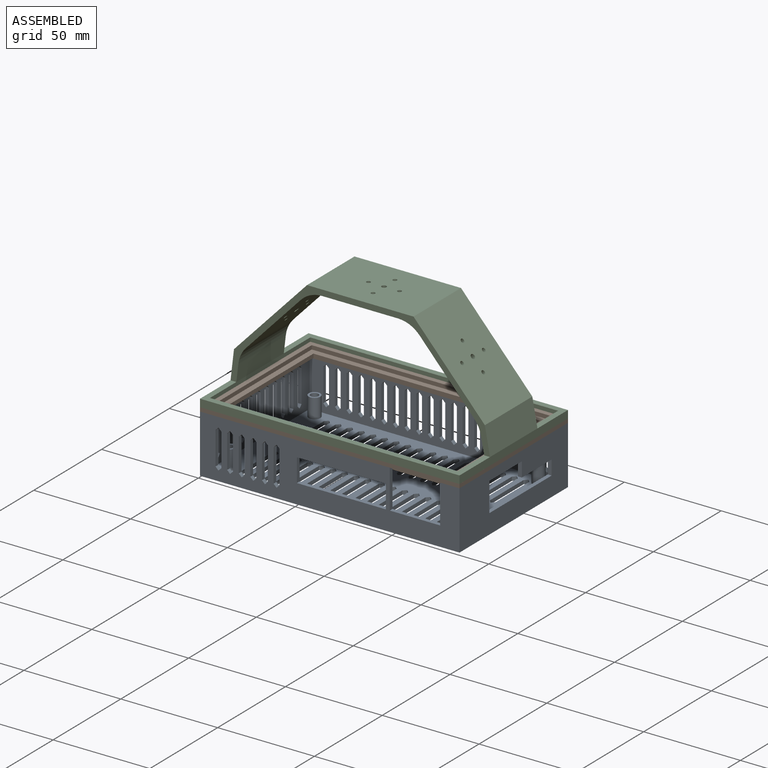
[diagram: assembled view]
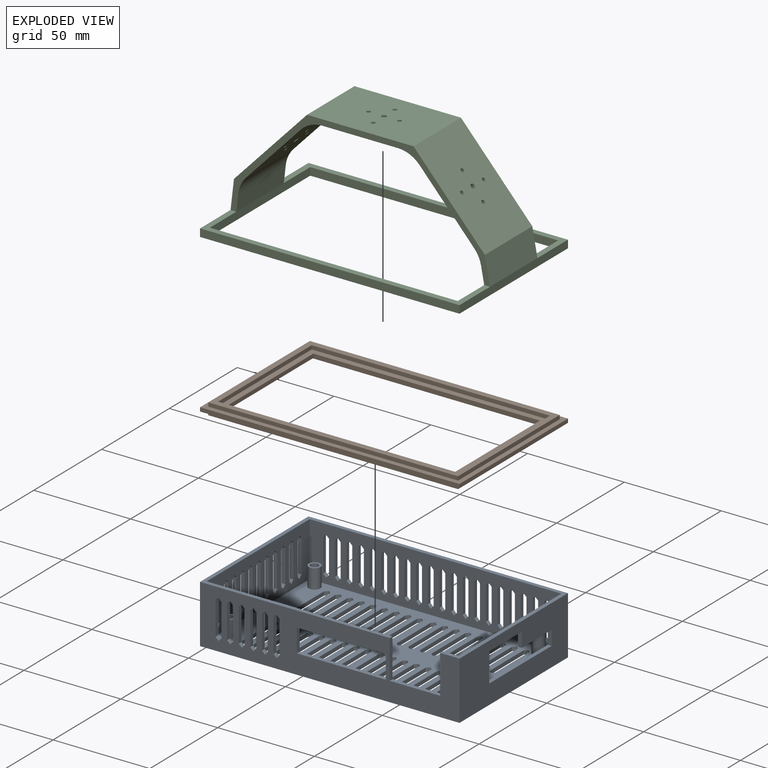
[diagram: exploded view]
GUIDED TOUR — MATED ASSEMBLY (Onshape document 5890c1cd3309240fdb452fa5, AutoMate assembly 5890c1cd3309240fdb452fa5_4b6ae7bb78ce8952fab262f6_283748c530d1849d8e3cf27d_default)

This assembly has 3 components, labeled P0..P2 below (a component is one placed occurrence of a part; the same part can appear more than once), held together by 4 mates. A mate is a constraint between two components; its type names the relative motion it leaves free:
  PLANAR — leaves sliding in the plane through the listed point (normal = the listed direction) and rotation about that normal free.
Axis/direction vectors are unit vectors and 'through' points are millimeter coordinates, both in the assembly's world frame.

MATES
  1. PLANAR "Planar 4": P2 <-> P1, direction (0.000, 0.000, -1.000) through (-32.54, -2.20, 28.53) mm
  2. PLANAR "Planar 3": P1 <-> P0, direction (0.000, 0.000, -1.000) through (-32.54, -2.20, 26.53) mm
  3. PLANAR "Planar 2": P1 <-> P0, direction (0.000, -1.000, 0.000) through (-32.54, -42.20, 27.53) mm
  4. PLANAR "Planar 1": P1 <-> P0, direction (1.000, 0.000, 0.000) through (34.46, -2.20, 27.53) mm

ASSEMBLY ORDER
  1. P1 — the base component [order verified]
  2. P0 [order verified]
  3. P2 [order verified]
Order-tag legend:
  [order verified] — this step's position reverses a verified removal order: the component was checked to insert without passing through the ones already placed.

Of the 3 components, 3 carry the full construction recipe — the FeatureScript program that regenerates the part's solid from scratch; the rest are supplied as boundary geometry only.
Each toured component is shown spotlighted twice — in the assembled view, then in the exploded view, where a leader line traces a displaced component back to its assembled socket (saturated green if recipe-attached, orange if geometry-only; every other component desaturated gray) — followed by its recipe or geometry summary and the mates that hold it.
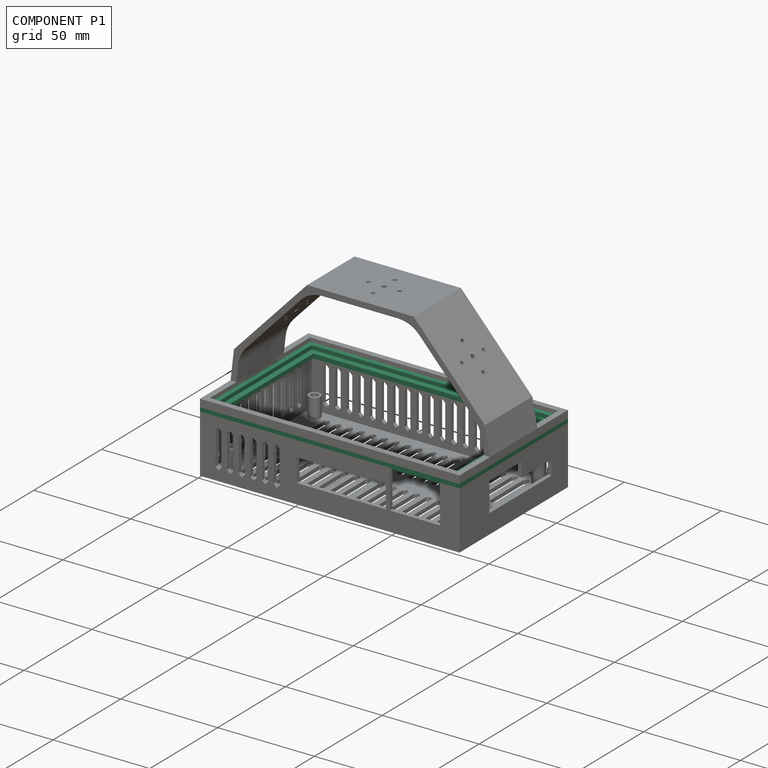
[diagram: component P1 — assembled]
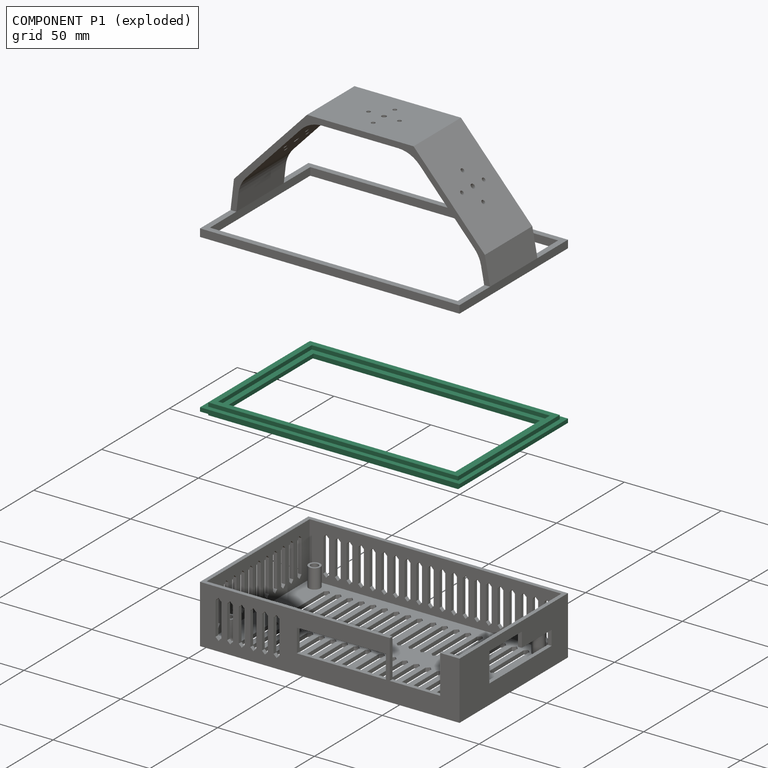
[diagram: component P1 — exploded]
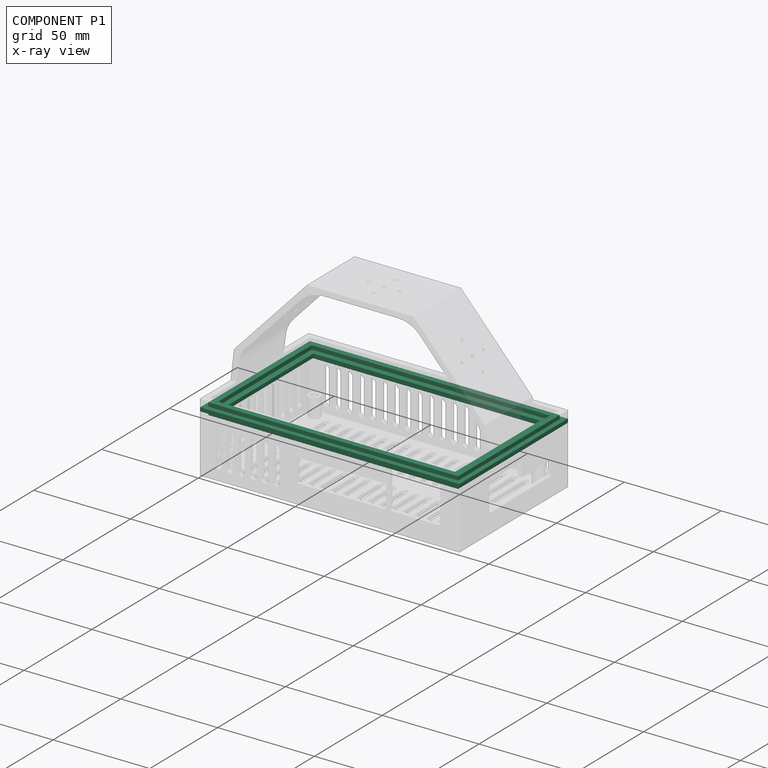
[diagram: component P1 — x-ray view]
COMPONENT P1 — recipe-attached (CADFS 00489795, mesh-verified: the recipe's output STEP matches this component's geometry to below the mesh-comparison resolution (tessellation chordal tolerance ~0.234 mm)).
Held by: PLANAR mate "Planar 4" to P2; PLANAR mate "Planar 3" to P0; PLANAR mate "Planar 2" to P0; PLANAR mate "Planar 1" to P0.
Construction recipe (FeatureScript — the CAD program that rebuilds this solid; sketch coordinates are in the units given by the * unit suffixes, e.g. mm):

FeatureScript 1511;
import(path : "onshape/std/geometry.fs", version : "1511.0");
import(path : "onshape/std/common.fs", version : "1511.0");
const mm = millimeter;
const VERTEX = EntityType.VERTEX;
const EDGE = EntityType.EDGE;
const FACE = EntityType.FACE;
const BODY = EntityType.BODY;
function v(x, y){return vector(x, y);}
function OD(order){return orderDisambiguation(order);}
function OSD(set){return originalSetDisambiguation(set);}
function TD(topology){return topologyDisambiguation(topology);}
function TDD(query){return trueDependencyDisambiguation(query);}
function sQuery(a, b, c) {return sketchEntityQuery(a, b, c);}

annotation { "Feature Type Name" : "Feature", "Feature Type Description" : "" }
export const myFeature = defineFeature(function(context is Context, id is Id, definition is map)
    precondition{}
    {
        {
            var Q0;
            Q0=qCreatedBy(makeId("Top.planeOp"),FACE);
            var sketch = newSketch(context, id + "F0", { "sketchPlane" : qUnion([Q0])});
            skLineSegment(sketch, "E0.bottom", {"start": v(-67, 40) * mm, "end": v(67, 40) * mm});
            skLineSegment(sketch, "E0.top", {"start": v(-67, -40) * mm, "end": v(67, -40) * mm});
            skLineSegment(sketch, "E0.left", {"start": v(-67, 40) * mm, "end": v(-67, -40) * mm});
            skLineSegment(sketch, "E0.right", {"start": v(67, 40) * mm, "end": v(67, -40) * mm});
            skSolve(sketch);
        }
        {
            var Q0;
            Q0=makeQuery(id+"F0.imprint","IMPRINT",FACE,{"disambiguationData":[TD([[makeQuery(id+"F0.imprint","IMPRINT",EDGE,{"derivedFrom":sQuery(id+"F0.wireOp",EDGE,"E0.bottom")}),-1.0]])]});
            extrude(context, id + "F1", {"entities" : qUnion([Q0]), "depth" : 2 * mm});
        }
        {
            var Q0;
            Q0=makeQuery(id+"F1.opExtrude","CAP_FACE",FACE,{"disambiguationData":[OSD([sQuery(id+"F0.wireOp",EDGE,"E0.bottom"),sQuery(id+"F0.wireOp",EDGE,"E0.top"),sQuery(id+"F0.wireOp",EDGE,"E0.left"),sQuery(id+"F0.wireOp",EDGE,"E0.right")])],"isStart":true});
            var sketch = newSketch(context, id + "F2", { "sketchPlane" : qUnion([Q0])});
            skLineSegment(sketch, "E1.bottom", {"start": v(-64.5, 37.5) * mm, "end": v(64.5, 37.5) * mm});
            skLineSegment(sketch, "E1.top", {"start": v(-64.5, -37.5) * mm, "end": v(64.5, -37.5) * mm});
            skLineSegment(sketch, "E1.left", {"start": v(-64.5, 37.5) * mm, "end": v(-64.5, -37.5) * mm});
            skLineSegment(sketch, "E1.right", {"start": v(64.5, 37.5) * mm, "end": v(64.5, -37.5) * mm});
            skLineSegment(sketch, "E2.bottom", {"start": v(-61.5, 34.5) * mm, "end": v(61.5, 34.5) * mm});
            skLineSegment(sketch, "E2.top", {"start": v(-61.5, -34.5) * mm, "end": v(61.5, -34.5) * mm});
            skLineSegment(sketch, "E2.left", {"start": v(-61.5, 34.5) * mm, "end": v(-61.5, -34.5) * mm});
            skLineSegment(sketch, "E2.right", {"start": v(61.5, 34.5) * mm, "end": v(61.5, -34.5) * mm});
            skSolve(sketch);
        }
        {
            var Q0;
            Q0=makeQuery(id+"F2.imprint","IMPRINT",FACE,{"disambiguationData":[TD([[makeQuery(id+"F2.imprint","IMPRINT",EDGE,{"derivedFrom":sQuery(id+"F2.wireOp",EDGE,"E1.bottom")}),-1.0]])]});
            extrude(context, id + "F3", {"entities" : qUnion([Q0]), "operationType" : NewBodyOperationType.ADD, "depth" : 2 * mm, "hasSecondDirection" : true, "secondDirectionOppositeDirection" : true, "secondDirectionDepth" : 4 * mm});
        }
        {
            var Q0;
            Q0=makeQuery(id+"F3.boolean.opBoolean","SPLIT",FACE,{"disambiguationData":[TD([makeQuery(id+"F3.opExtrude","SWEPT_FACE",FACE,{"disambiguationData":[OSD([sQuery(id+"F2.wireOp",EDGE,"E2.bottom")])]})])],"derivedFrom":makeQuery(id+"F1.opExtrude","CAP_FACE",FACE,{"disambiguationData":[OSD([sQuery(id+"F0.wireOp",EDGE,"E0.bottom"),sQuery(id+"F0.wireOp",EDGE,"E0.top"),sQuery(id+"F0.wireOp",EDGE,"E0.left"),sQuery(id+"F0.wireOp",EDGE,"E0.right")])],"isStart":true})});
            var sketch = newSketch(context, id + "F4", { "sketchPlane" : qUnion([Q0])});
            skLineSegment(sketch, "E3.0.0", {"start": v(-61.5, 34.5) * mm, "end": v(-61.5, -34.5) * mm});
            skLineSegment(sketch, "E3.0.1", {"start": v(-61.5, -34.5) * mm, "end": v(61.5, -34.5) * mm});
            skLineSegment(sketch, "E3.0.2", {"start": v(61.5, -34.5) * mm, "end": v(61.5, 34.5) * mm});
            skLineSegment(sketch, "E3.0.3", {"start": v(61.5, 34.5) * mm, "end": v(-61.5, 34.5) * mm});
            skLineSegment(sketch, "E4.bottom", {"start": v(-58.5, 31.5) * mm, "end": v(58.5, 31.5) * mm});
            skLineSegment(sketch, "E4.top", {"start": v(-58.5, -31.5) * mm, "end": v(58.5, -31.5) * mm});
            skLineSegment(sketch, "E4.left", {"start": v(-58.5, 31.5) * mm, "end": v(-58.5, -31.5) * mm});
            skLineSegment(sketch, "E4.right", {"start": v(58.5, 31.5) * mm, "end": v(58.5, -31.5) * mm});
            skSolve(sketch);
        }
        {
            var Q0;
            Q0=makeQuery(id+"F4.imprint","IMPRINT",FACE,{"disambiguationData":[TD([[makeQuery(id+"F4.imprint","IMPRINT",EDGE,{"derivedFrom":sQuery(id+"F4.wireOp",EDGE,"E4.bottom")}),-1.0]])]});
            extrude(context, id + "F5", {"entities" : qUnion([Q0]), "operationType" : NewBodyOperationType.REMOVE, "oppositeDirection" : true, "depth" : 25 * mm});
        }
    });
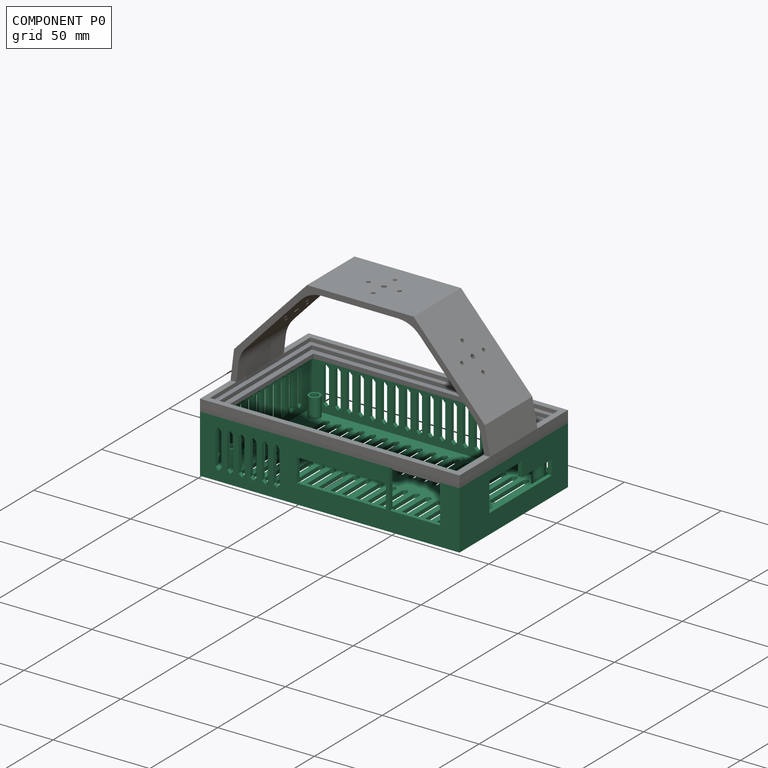
[diagram: component P0 — assembled]
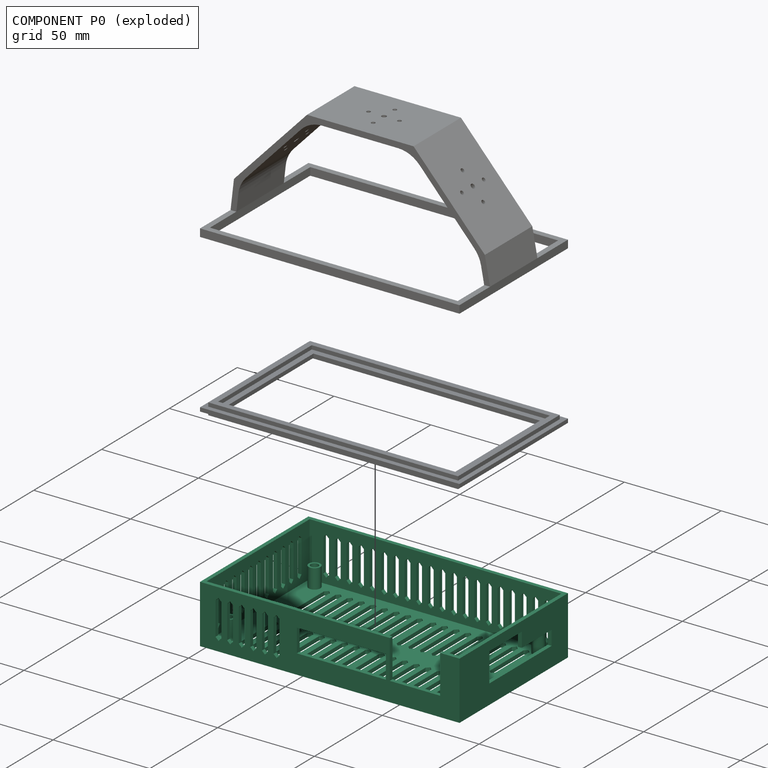
[diagram: component P0 — exploded]
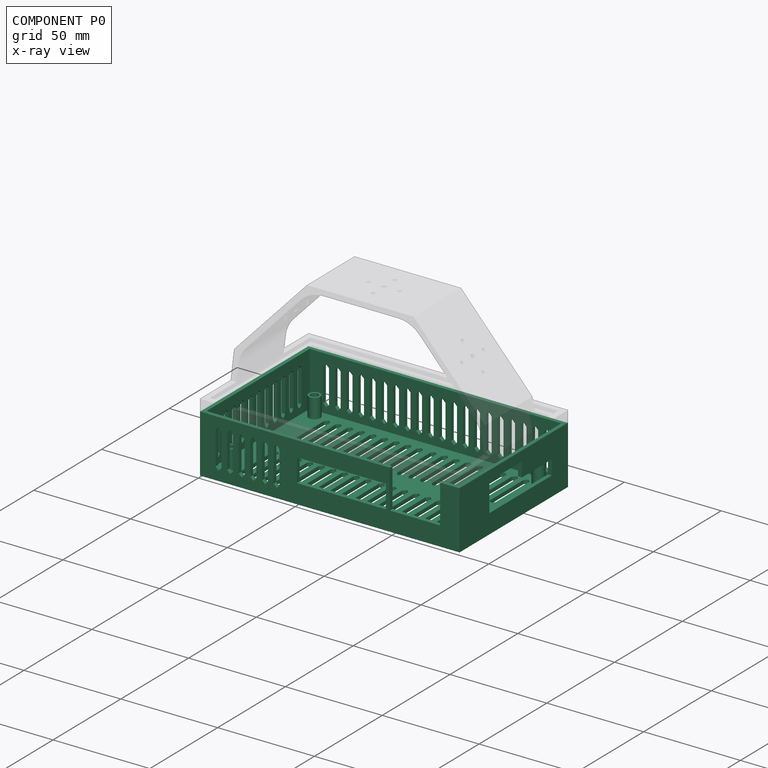
[diagram: component P0 — x-ray view]
COMPONENT P0 — recipe-attached (CADFS 00489794, mesh-verified: the recipe's output STEP matches this component's geometry to below the mesh-comparison resolution (tessellation chordal tolerance ~0.238 mm)).
Held by: PLANAR mate "Planar 3" to P1; PLANAR mate "Planar 2" to P1; PLANAR mate "Planar 1" to P1.
Construction recipe (FeatureScript — the CAD program that rebuilds this solid; sketch coordinates are in the units given by the * unit suffixes, e.g. mm):

FeatureScript 1511;
import(path : "onshape/std/geometry.fs", version : "1511.0");
import(path : "onshape/std/common.fs", version : "1511.0");
const mm = millimeter;
const VERTEX = EntityType.VERTEX;
const EDGE = EntityType.EDGE;
const FACE = EntityType.FACE;
const BODY = EntityType.BODY;
function v(x, y){return vector(x, y);}
function OD(order){return orderDisambiguation(order);}
function OSD(set){return originalSetDisambiguation(set);}
function TD(topology){return topologyDisambiguation(topology);}
function TDD(query){return trueDependencyDisambiguation(query);}
function sQuery(a, b, c) {return sketchEntityQuery(a, b, c);}

annotation { "Feature Type Name" : "Feature", "Feature Type Description" : "" }
export const myFeature = defineFeature(function(context is Context, id is Id, definition is map)
    precondition{}
    {
        {
            var Q0;
            Q0=qCreatedBy(makeId("Top.planeOp"),FACE);
            var sketch = newSketch(context, id + "F0", { "sketchPlane" : qUnion([Q0])});
            skLineSegment(sketch, "E0.bottom", {"start": v(-65, 38) * mm, "end": v(65, 38) * mm});
            skLineSegment(sketch, "E0.top", {"start": v(-65, -38) * mm, "end": v(65, -38) * mm});
            skLineSegment(sketch, "E0.left", {"start": v(-65, 38) * mm, "end": v(-65, -38) * mm});
            skLineSegment(sketch, "E0.right", {"start": v(65, 38) * mm, "end": v(65, -38) * mm});
            skSolve(sketch);
        }
        {
            var Q0;
            Q0=makeQuery(id+"F0.imprint","IMPRINT",FACE,{"disambiguationData":[TD([[makeQuery(id+"F0.imprint","IMPRINT",EDGE,{"derivedFrom":sQuery(id+"F0.wireOp",EDGE,"E0.bottom")}),-1.0]])]});
            extrude(context, id + "F1", {"entities" : qUnion([Q0]), "depth" : 2 * mm});
        }
        {
            var Q0;
            Q0=qCreatedBy(makeId("Top.planeOp"),FACE);
            var sketch = newSketch(context, id + "F2", { "sketchPlane" : qUnion([Q0])});
            skLineSegment(sketch, "E1.bottom", {"start": v(-67, 40) * mm, "end": v(67, 40) * mm});
            skLineSegment(sketch, "E1.top", {"start": v(-67, -40) * mm, "end": v(67, -40) * mm});
            skLineSegment(sketch, "E1.left", {"start": v(-67, 40) * mm, "end": v(-67, -40) * mm});
            skLineSegment(sketch, "E1.right", {"start": v(67, 40) * mm, "end": v(67, -40) * mm});
            skLineSegment(sketch, "E2.bottom", {"start": v(-65, 38) * mm, "end": v(65, 38) * mm});
            skLineSegment(sketch, "E2.top", {"start": v(-65, -38) * mm, "end": v(65, -38) * mm});
            skLineSegment(sketch, "E2.left", {"start": v(-65, 38) * mm, "end": v(-65, -38) * mm});
            skLineSegment(sketch, "E2.right", {"start": v(65, 38) * mm, "end": v(65, -38) * mm});
            skSolve(sketch);
        }
        {
            var Q0;
            Q0=makeQuery(id+"F2.imprint","IMPRINT",FACE,{"disambiguationData":[TD([[makeQuery(id+"F2.imprint","IMPRINT",EDGE,{"derivedFrom":sQuery(id+"F2.wireOp",EDGE,"E1.bottom")}),-1.0]])]});
            extrude(context, id + "F3", {"entities" : qUnion([Q0]), "operationType" : NewBodyOperationType.ADD, "depth" : 30 * mm});
        }
        {
            var Q0;
            Q0=makeQuery(id+"F1.opExtrude","CAP_FACE",FACE,{"disambiguationData":[OSD([sQuery(id+"F0.wireOp",EDGE,"E0.bottom"),sQuery(id+"F0.wireOp",EDGE,"E0.top"),sQuery(id+"F0.wireOp",EDGE,"E0.left"),sQuery(id+"F0.wireOp",EDGE,"E0.right")])],"isStart":false});
            var sketch = newSketch(context, id + "F4", { "sketchPlane" : qUnion([Q0])});
            skCircle(sketch, "E3", {"center": v(-59, 33) * mm, "radius": 3 * mm});
            skCircle(sketch, "E4", {"center": v(56.7, 33) * mm, "radius": 3 * mm});
            skCircle(sketch, "E5", {"center": v(56.7, -30) * mm, "radius": 3 * mm});
            skCircle(sketch, "E6", {"center": v(-59, -30) * mm, "radius": 3 * mm});
            skCircle(sketch, "E7", {"center": v(-59, 33) * mm, "radius": 2 * mm});
            skCircle(sketch, "E8", {"center": v(-59, -30) * mm, "radius": 2 * mm});
            skCircle(sketch, "E9", {"center": v(56.7, -30) * mm, "radius": 2 * mm});
            skCircle(sketch, "E10", {"center": v(56.7, 33) * mm, "radius": 2 * mm});
            skSolve(sketch);
        }
        {
            var Q0;
            Q0=makeQuery(id+"F4.imprint","IMPRINT",FACE,{"disambiguationData":[TD([[makeQuery(id+"F4.imprint","IMPRINT",EDGE,{"derivedFrom":sQuery(id+"F4.wireOp",EDGE,"E4")}),1.0]])]});
            var Q1;
            Q1=makeQuery(id+"F4.imprint","IMPRINT",FACE,{"disambiguationData":[TD([[makeQuery(id+"F4.imprint","IMPRINT",EDGE,{"derivedFrom":sQuery(id+"F4.wireOp",EDGE,"E5")}),1.0]])]});
            var Q2;
            Q2=makeQuery(id+"F4.imprint","IMPRINT",FACE,{"disambiguationData":[TD([[makeQuery(id+"F4.imprint","IMPRINT",EDGE,{"derivedFrom":sQuery(id+"F4.wireOp",EDGE,"E6")}),1.0]])]});
            var Q3;
            Q3=makeQuery(id+"F4.imprint","IMPRINT",FACE,{"disambiguationData":[TD([[makeQuery(id+"F4.imprint","IMPRINT",EDGE,{"derivedFrom":sQuery(id+"F4.wireOp",EDGE,"E3")}),1.0]])]});
            extrude(context, id + "F5", {"entities" : qUnion([Q0, Q1, Q2, Q3]), "operationType" : NewBodyOperationType.ADD, "depth" : 10 * mm});
        }
        {
            var Q0;
            Q0=makeQuery(id+"F3.opExtrude","SWEPT_FACE",FACE,{"disambiguationData":[OSD([sQuery(id+"F2.wireOp",EDGE,"E1.top")])]});
            var sketch = newSketch(context, id + "F6", { "sketchPlane" : qUnion([Q0])});
            skLineSegment(sketch, "E11.bottom", {"start": v(31, 10) * mm, "end": v(57, 10) * mm});
            skLineSegment(sketch, "E11.top", {"start": v(31, 30) * mm, "end": v(57, 30) * mm});
            skLineSegment(sketch, "E11.left", {"start": v(31, 10) * mm, "end": v(31, 30) * mm});
            skLineSegment(sketch, "E11.right", {"start": v(57, 10) * mm, "end": v(57, 30) * mm});
            skLineSegment(sketch, "E12.bottom", {"start": v(-17, 10) * mm, "end": v(29, 10) * mm});
            skLineSegment(sketch, "E12.top", {"start": v(-17, 22) * mm, "end": v(29, 22) * mm});
            skLineSegment(sketch, "E12.left", {"start": v(-17, 10) * mm, "end": v(-17, 22) * mm});
            skLineSegment(sketch, "E12.right", {"start": v(29, 10) * mm, "end": v(29, 22) * mm});
            skSolve(sketch);
        }
        {
            var Q0;
            Q0=makeQuery(id+"F3.opExtrude","SWEPT_FACE",FACE,{"disambiguationData":[OSD([sQuery(id+"F2.wireOp",EDGE,"E1.right")])]});
            var sketch = newSketch(context, id + "F7", { "sketchPlane" : qUnion([Q0])});
            skLineSegment(sketch, "E13.bottom", {"start": v(-18, 10) * mm, "end": v(6, 10) * mm});
            skLineSegment(sketch, "E13.top", {"start": v(-18, 25) * mm, "end": v(6, 25) * mm});
            skLineSegment(sketch, "E13.left", {"start": v(-18, 10) * mm, "end": v(-18, 25) * mm});
            skLineSegment(sketch, "E13.right", {"start": v(6, 10) * mm, "end": v(6, 25) * mm});
            skLineSegment(sketch, "E14.bottom", {"start": v(6, 17.5) * mm, "end": v(28, 17.5) * mm});
            skLineSegment(sketch, "E14.top", {"start": v(6, 10) * mm, "end": v(28, 10) * mm});
            skLineSegment(sketch, "E14.left", {"start": v(6, 17.5) * mm, "end": v(6, 10) * mm});
            skLineSegment(sketch, "E14.right", {"start": v(28, 17.5) * mm, "end": v(28, 10) * mm});
            skSolve(sketch);
        }
        {
            var Q0;
            Q0=makeQuery(id+"F6.imprint","IMPRINT",FACE,{"disambiguationData":[TD([[makeQuery(id+"F6.imprint","IMPRINT",EDGE,{"derivedFrom":sQuery(id+"F6.wireOp",EDGE,"E11.bottom")}),1.0]])]});
            var Q1;
            Q1=makeQuery(id+"F6.imprint","IMPRINT",FACE,{"disambiguationData":[TD([[makeQuery(id+"F6.imprint","IMPRINT",EDGE,{"derivedFrom":sQuery(id+"F6.wireOp",EDGE,"E12.bottom")}),1.0]])]});
            extrude(context, id + "F8", {"entities" : qUnion([Q0, Q1]), "operationType" : NewBodyOperationType.REMOVE, "oppositeDirection" : true, "depth" : 2 * mm});
        }
        {
            var Q0;
            Q0=makeQuery(id+"F7.imprint","IMPRINT",FACE,{"disambiguationData":[TD([[makeQuery(id+"F7.imprint","IMPRINT",EDGE,{"derivedFrom":sQuery(id+"F7.wireOp",EDGE,"E13.bottom")}),1.0]])]});
            var Q1;
            Q1=makeQuery(id+"F7.imprint","IMPRINT",FACE,{"disambiguationData":[TD([[makeQuery(id+"F7.imprint","IMPRINT",EDGE,{"derivedFrom":sQuery(id+"F7.wireOp",EDGE,"E14.bottom")}),-1.0]])]});
            extrude(context, id + "F9", {"entities" : qUnion([Q0, Q1]), "operationType" : NewBodyOperationType.REMOVE, "oppositeDirection" : true, "depth" : 25 * mm});
        }
        {
            var Q0;
            Q0=makeQuery(id+"F3.opExtrude","SWEPT_FACE",FACE,{"disambiguationData":[OSD([sQuery(id+"F2.wireOp",EDGE,"E1.bottom")])]});
            var sketch = newSketch(context, id + "F10", { "sketchPlane" : qUnion([Q0])});
            skLineSegment(sketch, "E15.bottom", {"start": v(-59, 23.5) * mm, "end": v(-56, 23.5) * mm});
            skLineSegment(sketch, "E15.top", {"start": v(-59, 6.5) * mm, "end": v(-56, 6.5) * mm});
            skLineSegment(sketch, "E15.left", {"start": v(-59, 23.5) * mm, "end": v(-59, 6.5) * mm});
            skLineSegment(sketch, "E15.right", {"start": v(-56, 23.5) * mm, "end": v(-56, 6.5) * mm});
            skLineSegment(sketch, "E16", {"start": v(-59, 23.5) * mm, "end": v(-57.5, 25) * mm});
            skLineSegment(sketch, "E17", {"start": v(-57.5, 25) * mm, "end": v(-56, 23.5) * mm});
            skLineSegment(sketch, "E18", {"start": v(-56, 6.5) * mm, "end": v(-57.5, 5) * mm});
            skLineSegment(sketch, "E19", {"start": v(-57.5, 5) * mm, "end": v(-59, 6.5) * mm});
            skLineSegment(sketch, "E20.1.0.0", {"start": v(-53, 6.5) * mm, "end": v(-50, 6.5) * mm});
            skLineSegment(sketch, "E20.1.0.1", {"start": v(-50, 23.5) * mm, "end": v(-50, 6.5) * mm});
            skLineSegment(sketch, "E20.1.0.2", {"start": v(-53, 23.5) * mm, "end": v(-50, 23.5) * mm});
            skLineSegment(sketch, "E20.1.0.3", {"start": v(-53, 23.5) * mm, "end": v(-53, 6.5) * mm});
            skLineSegment(sketch, "E20.1.0.4", {"start": v(-51.5, 5) * mm, "end": v(-53, 6.5) * mm});
            skLineSegment(sketch, "E20.1.0.5", {"start": v(-53, 23.5) * mm, "end": v(-51.5, 25) * mm});
            skLineSegment(sketch, "E20.1.0.6", {"start": v(-51.5, 25) * mm, "end": v(-50, 23.5) * mm});
            skLineSegment(sketch, "E20.1.0.7", {"start": v(-50, 6.5) * mm, "end": v(-51.5, 5) * mm});
            skLineSegment(sketch, "E20.2.0.0", {"start": v(-47, 6.5) * mm, "end": v(-44, 6.5) * mm});
            skLineSegment(sketch, "E20.2.0.1", {"start": v(-44, 23.5) * mm, "end": v(-44, 6.5) * mm});
            skLineSegment(sketch, "E20.2.0.2", {"start": v(-47, 23.5) * mm, "end": v(-44, 23.5) * mm});
            skLineSegment(sketch, "E20.2.0.3", {"start": v(-47, 23.5) * mm, "end": v(-47, 6.5) * mm});
            skLineSegment(sketch, "E20.2.0.4", {"start": v(-45.5, 5) * mm, "end": v(-47, 6.5) * mm});
            skLineSegment(sketch, "E20.2.0.5", {"start": v(-47, 23.5) * mm, "end": v(-45.5, 25) * mm});
            skLineSegment(sketch, "E20.2.0.6", {"start": v(-45.5, 25) * mm, "end": v(-44, 23.5) * mm});
            skLineSegment(sketch, "E20.2.0.7", {"start": v(-44, 6.5) * mm, "end": v(-45.5, 5) * mm});
            skLineSegment(sketch, "E20.3.0.0", {"start": v(-41, 6.5) * mm, "end": v(-38, 6.5) * mm});
            skLineSegment(sketch, "E20.3.0.1", {"start": v(-38, 23.5) * mm, "end": v(-38, 6.5) * mm});
            skLineSegment(sketch, "E20.3.0.2", {"start": v(-41, 23.5) * mm, "end": v(-38, 23.5) * mm});
            skLineSegment(sketch, "E20.3.0.3", {"start": v(-41, 23.5) * mm, "end": v(-41, 6.5) * mm});
            skLineSegment(sketch, "E20.3.0.4", {"start": v(-39.5, 5) * mm, "end": v(-41, 6.5) * mm});
            skLineSegment(sketch, "E20.3.0.5", {"start": v(-41, 23.5) * mm, "end": v(-39.5, 25) * mm});
            skLineSegment(sketch, "E20.3.0.6", {"start": v(-39.5, 25) * mm, "end": v(-38, 23.5) * mm});
            skLineSegment(sketch, "E20.3.0.7", {"start": v(-38, 6.5) * mm, "end": v(-39.5, 5) * mm});
            skLineSegment(sketch, "E20.4.0.0", {"start": v(-35, 6.5) * mm, "end": v(-32, 6.5) * mm});
            skLineSegment(sketch, "E20.4.0.1", {"start": v(-32, 23.5) * mm, "end": v(-32, 6.5) * mm});
            skLineSegment(sketch, "E20.4.0.2", {"start": v(-35, 23.5) * mm, "end": v(-32, 23.5) * mm});
            skLineSegment(sketch, "E20.4.0.3", {"start": v(-35, 23.5) * mm, "end": v(-35, 6.5) * mm});
            skLineSegment(sketch, "E20.4.0.4", {"start": v(-33.5, 5) * mm, "end": v(-35, 6.5) * mm});
            skLineSegment(sketch, "E20.4.0.5", {"start": v(-35, 23.5) * mm, "end": v(-33.5, 25) * mm});
            skLineSegment(sketch, "E20.4.0.6", {"start": v(-33.5, 25) * mm, "end": v(-32, 23.5) * mm});
            skLineSegment(sketch, "E20.4.0.7", {"start": v(-32, 6.5) * mm, "end": v(-33.5, 5) * mm});
            skLineSegment(sketch, "E20.5.0.0", {"start": v(-29, 6.5) * mm, "end": v(-26, 6.5) * mm});
            skLineSegment(sketch, "E20.5.0.1", {"start": v(-26, 23.5) * mm, "end": v(-26, 6.5) * mm});
            skLineSegment(sketch, "E20.5.0.2", {"start": v(-29, 23.5) * mm, "end": v(-26, 23.5) * mm});
            skLineSegment(sketch, "E20.5.0.3", {"start": v(-29, 23.5) * mm, "end": v(-29, 6.5) * mm});
            skLineSegment(sketch, "E20.5.0.4", {"start": v(-27.5, 5) * mm, "end": v(-29, 6.5) * mm});
            skLineSegment(sketch, "E20.5.0.5", {"start": v(-29, 23.5) * mm, "end": v(-27.5, 25) * mm});
            skLineSegment(sketch, "E20.5.0.6", {"start": v(-27.5, 25) * mm, "end": v(-26, 23.5) * mm});
            skLineSegment(sketch, "E20.5.0.7", {"start": v(-26, 6.5) * mm, "end": v(-27.5, 5) * mm});
            skLineSegment(sketch, "E20.6.0.0", {"start": v(-23, 6.5) * mm, "end": v(-20, 6.5) * mm});
            skLineSegment(sketch, "E20.6.0.1", {"start": v(-20, 23.5) * mm, "end": v(-20, 6.5) * mm});
            skLineSegment(sketch, "E20.6.0.2", {"start": v(-23, 23.5) * mm, "end": v(-20, 23.5) * mm});
            skLineSegment(sketch, "E20.6.0.3", {"start": v(-23, 23.5) * mm, "end": v(-23, 6.5) * mm});
            skLineSegment(sketch, "E20.6.0.4", {"start": v(-21.5, 5) * mm, "end": v(-23, 6.5) * mm});
            skLineSegment(sketch, "E20.6.0.5", {"start": v(-23, 23.5) * mm, "end": v(-21.5, 25) * mm});
            skLineSegment(sketch, "E20.6.0.6", {"start": v(-21.5, 25) * mm, "end": v(-20, 23.5) * mm});
            skLineSegment(sketch, "E20.6.0.7", {"start": v(-20, 6.5) * mm, "end": v(-21.5, 5) * mm});
            skLineSegment(sketch, "E20.7.0.0", {"start": v(-17, 6.5) * mm, "end": v(-14, 6.5) * mm});
            skLineSegment(sketch, "E20.7.0.1", {"start": v(-14, 23.5) * mm, "end": v(-14, 6.5) * mm});
            skLineSegment(sketch, "E20.7.0.2", {"start": v(-17, 23.5) * mm, "end": v(-14, 23.5) * mm});
            skLineSegment(sketch, "E20.7.0.3", {"start": v(-17, 23.5) * mm, "end": v(-17, 6.5) * mm});
            skLineSegment(sketch, "E20.7.0.4", {"start": v(-15.5, 5) * mm, "end": v(-17, 6.5) * mm});
            skLineSegment(sketch, "E20.7.0.5", {"start": v(-17, 23.5) * mm, "end": v(-15.5, 25) * mm});
            skLineSegment(sketch, "E20.7.0.6", {"start": v(-15.5, 25) * mm, "end": v(-14, 23.5) * mm});
            skLineSegment(sketch, "E20.7.0.7", {"start": v(-14, 6.5) * mm, "end": v(-15.5, 5) * mm});
            skLineSegment(sketch, "E20.8.0.0", {"start": v(-11, 6.5) * mm, "end": v(-8, 6.5) * mm});
            skLineSegment(sketch, "E20.8.0.1", {"start": v(-8, 23.5) * mm, "end": v(-8, 6.5) * mm});
            skLineSegment(sketch, "E20.8.0.2", {"start": v(-11, 23.5) * mm, "end": v(-8, 23.5) * mm});
            skLineSegment(sketch, "E20.8.0.3", {"start": v(-11, 23.5) * mm, "end": v(-11, 6.5) * mm});
            skLineSegment(sketch, "E20.8.0.4", {"start": v(-9.5, 5) * mm, "end": v(-11, 6.5) * mm});
            skLineSegment(sketch, "E20.8.0.5", {"start": v(-11, 23.5) * mm, "end": v(-9.5, 25) * mm});
            skLineSegment(sketch, "E20.8.0.6", {"start": v(-9.5, 25) * mm, "end": v(-8, 23.5) * mm});
            skLineSegment(sketch, "E20.8.0.7", {"start": v(-8, 6.5) * mm, "end": v(-9.5, 5) * mm});
            skLineSegment(sketch, "E20.9.0.0", {"start": v(-5, 6.5) * mm, "end": v(-2, 6.5) * mm});
            skLineSegment(sketch, "E20.9.0.1", {"start": v(-2, 23.5) * mm, "end": v(-2, 6.5) * mm});
            skLineSegment(sketch, "E20.9.0.2", {"start": v(-5, 23.5) * mm, "end": v(-2, 23.5) * mm});
            skLineSegment(sketch, "E20.9.0.3", {"start": v(-5, 23.5) * mm, "end": v(-5, 6.5) * mm});
            skLineSegment(sketch, "E20.9.0.4", {"start": v(-3.5, 5) * mm, "end": v(-5, 6.5) * mm});
            skLineSegment(sketch, "E20.9.0.5", {"start": v(-5, 23.5) * mm, "end": v(-3.5, 25) * mm});
            skLineSegment(sketch, "E20.9.0.6", {"start": v(-3.5, 25) * mm, "end": v(-2, 23.5) * mm});
            skLineSegment(sketch, "E20.9.0.7", {"start": v(-2, 6.5) * mm, "end": v(-3.5, 5) * mm});
            skLineSegment(sketch, "E20.10.0.0", {"start": v(1, 6.5) * mm, "end": v(4, 6.5) * mm});
            skLineSegment(sketch, "E20.10.0.1", {"start": v(4, 23.5) * mm, "end": v(4, 6.5) * mm});
            skLineSegment(sketch, "E20.10.0.2", {"start": v(1, 23.5) * mm, "end": v(4, 23.5) * mm});
            skLineSegment(sketch, "E20.10.0.3", {"start": v(1, 23.5) * mm, "end": v(1, 6.5) * mm});
            skLineSegment(sketch, "E20.10.0.4", {"start": v(2.5, 5) * mm, "end": v(1, 6.5) * mm});
            skLineSegment(sketch, "E20.10.0.5", {"start": v(1, 23.5) * mm, "end": v(2.5, 25) * mm});
            skLineSegment(sketch, "E20.10.0.6", {"start": v(2.5, 25) * mm, "end": v(4, 23.5) * mm});
            skLineSegment(sketch, "E20.10.0.7", {"start": v(4, 6.5) * mm, "end": v(2.5, 5) * mm});
            skLineSegment(sketch, "E20.11.0.0", {"start": v(7, 6.5) * mm, "end": v(10, 6.5) * mm});
            skLineSegment(sketch, "E20.11.0.1", {"start": v(10, 23.5) * mm, "end": v(10, 6.5) * mm});
            skLineSegment(sketch, "E20.11.0.2", {"start": v(7, 23.5) * mm, "end": v(10, 23.5) * mm});
            skLineSegment(sketch, "E20.11.0.3", {"start": v(7, 23.5) * mm, "end": v(7, 6.5) * mm});
            skLineSegment(sketch, "E20.11.0.4", {"start": v(8.5, 5) * mm, "end": v(7, 6.5) * mm});
            skLineSegment(sketch, "E20.11.0.5", {"start": v(7, 23.5) * mm, "end": v(8.5, 25) * mm});
            skLineSegment(sketch, "E20.11.0.6", {"start": v(8.5, 25) * mm, "end": v(10, 23.5) * mm});
            skLineSegment(sketch, "E20.11.0.7", {"start": v(10, 6.5) * mm, "end": v(8.5, 5) * mm});
            skLineSegment(sketch, "E20.12.0.0", {"start": v(13, 6.5) * mm, "end": v(16, 6.5) * mm});
            skLineSegment(sketch, "E20.12.0.1", {"start": v(16, 23.5) * mm, "end": v(16, 6.5) * mm});
            skLineSegment(sketch, "E20.12.0.2", {"start": v(13, 23.5) * mm, "end": v(16, 23.5) * mm});
            skLineSegment(sketch, "E20.12.0.3", {"start": v(13, 23.5) * mm, "end": v(13, 6.5) * mm});
            skLineSegment(sketch, "E20.12.0.4", {"start": v(14.5, 5) * mm, "end": v(13, 6.5) * mm});
            skLineSegment(sketch, "E20.12.0.5", {"start": v(13, 23.5) * mm, "end": v(14.5, 25) * mm});
            skLineSegment(sketch, "E20.12.0.6", {"start": v(14.5, 25) * mm, "end": v(16, 23.5) * mm});
            skLineSegment(sketch, "E20.12.0.7", {"start": v(16, 6.5) * mm, "end": v(14.5, 5) * mm});
            skLineSegment(sketch, "E20.13.0.0", {"start": v(19, 6.5) * mm, "end": v(22, 6.5) * mm});
            skLineSegment(sketch, "E20.13.0.1", {"start": v(22, 23.5) * mm, "end": v(22, 6.5) * mm});
            skLineSegment(sketch, "E20.13.0.2", {"start": v(19, 23.5) * mm, "end": v(22, 23.5) * mm});
            skLineSegment(sketch, "E20.13.0.3", {"start": v(19, 23.5) * mm, "end": v(19, 6.5) * mm});
            skLineSegment(sketch, "E20.13.0.4", {"start": v(20.5, 5) * mm, "end": v(19, 6.5) * mm});
            skLineSegment(sketch, "E20.13.0.5", {"start": v(19, 23.5) * mm, "end": v(20.5, 25) * mm});
            skLineSegment(sketch, "E20.13.0.6", {"start": v(20.5, 25) * mm, "end": v(22, 23.5) * mm});
            skLineSegment(sketch, "E20.13.0.7", {"start": v(22, 6.5) * mm, "end": v(20.5, 5) * mm});
            skLineSegment(sketch, "E20.14.0.0", {"start": v(25, 6.5) * mm, "end": v(28, 6.5) * mm});
            skLineSegment(sketch, "E20.14.0.1", {"start": v(28, 23.5) * mm, "end": v(28, 6.5) * mm});
            skLineSegment(sketch, "E20.14.0.2", {"start": v(25, 23.5) * mm, "end": v(28, 23.5) * mm});
            skLineSegment(sketch, "E20.14.0.3", {"start": v(25, 23.5) * mm, "end": v(25, 6.5) * mm});
            skLineSegment(sketch, "E20.14.0.4", {"start": v(26.5, 5) * mm, "end": v(25, 6.5) * mm});
            skLineSegment(sketch, "E20.14.0.5", {"start": v(25, 23.5) * mm, "end": v(26.5, 25) * mm});
            skLineSegment(sketch, "E20.14.0.6", {"start": v(26.5, 25) * mm, "end": v(28, 23.5) * mm});
            skLineSegment(sketch, "E20.14.0.7", {"start": v(28, 6.5) * mm, "end": v(26.5, 5) * mm});
            skLineSegment(sketch, "E20.15.0.0", {"start": v(31, 6.5) * mm, "end": v(34, 6.5) * mm});
            skLineSegment(sketch, "E20.15.0.1", {"start": v(34, 23.5) * mm, "end": v(34, 6.5) * mm});
            skLineSegment(sketch, "E20.15.0.2", {"start": v(31, 23.5) * mm, "end": v(34, 23.5) * mm});
            skLineSegment(sketch, "E20.15.0.3", {"start": v(31, 23.5) * mm, "end": v(31, 6.5) * mm});
            skLineSegment(sketch, "E20.15.0.4", {"start": v(32.5, 5) * mm, "end": v(31, 6.5) * mm});
            skLineSegment(sketch, "E20.15.0.5", {"start": v(31, 23.5) * mm, "end": v(32.5, 25) * mm});
            skLineSegment(sketch, "E20.15.0.6", {"start": v(32.5, 25) * mm, "end": v(34, 23.5) * mm});
            skLineSegment(sketch, "E20.15.0.7", {"start": v(34, 6.5) * mm, "end": v(32.5, 5) * mm});
            skLineSegment(sketch, "E20.16.0.0", {"start": v(37, 6.5) * mm, "end": v(40, 6.5) * mm});
            skLineSegment(sketch, "E20.16.0.1", {"start": v(40, 23.5) * mm, "end": v(40, 6.5) * mm});
            skLineSegment(sketch, "E20.16.0.2", {"start": v(37, 23.5) * mm, "end": v(40, 23.5) * mm});
            skLineSegment(sketch, "E20.16.0.3", {"start": v(37, 23.5) * mm, "end": v(37, 6.5) * mm});
            skLineSegment(sketch, "E20.16.0.4", {"start": v(38.5, 5) * mm, "end": v(37, 6.5) * mm});
            skLineSegment(sketch, "E20.16.0.5", {"start": v(37, 23.5) * mm, "end": v(38.5, 25) * mm});
            skLineSegment(sketch, "E20.16.0.6", {"start": v(38.5, 25) * mm, "end": v(40, 23.5) * mm});
            skLineSegment(sketch, "E20.16.0.7", {"start": v(40, 6.5) * mm, "end": v(38.5, 5) * mm});
            skLineSegment(sketch, "E20.17.0.0", {"start": v(43, 6.5) * mm, "end": v(46, 6.5) * mm});
            skLineSegment(sketch, "E20.17.0.1", {"start": v(46, 23.5) * mm, "end": v(46, 6.5) * mm});
            skLineSegment(sketch, "E20.17.0.2", {"start": v(43, 23.5) * mm, "end": v(46, 23.5) * mm});
            skLineSegment(sketch, "E20.17.0.3", {"start": v(43, 23.5) * mm, "end": v(43, 6.5) * mm});
            skLineSegment(sketch, "E20.17.0.4", {"start": v(44.5, 5) * mm, "end": v(43, 6.5) * mm});
            skLineSegment(sketch, "E20.17.0.5", {"start": v(43, 23.5) * mm, "end": v(44.5, 25) * mm});
            skLineSegment(sketch, "E20.17.0.6", {"start": v(44.5, 25) * mm, "end": v(46, 23.5) * mm});
            skLineSegment(sketch, "E20.17.0.7", {"start": v(46, 6.5) * mm, "end": v(44.5, 5) * mm});
            skLineSegment(sketch, "E20.18.0.0", {"start": v(49, 6.5) * mm, "end": v(52, 6.5) * mm});
            skLineSegment(sketch, "E20.18.0.1", {"start": v(52, 23.5) * mm, "end": v(52, 6.5) * mm});
            skLineSegment(sketch, "E20.18.0.2", {"start": v(49, 23.5) * mm, "end": v(52, 23.5) * mm});
            skLineSegment(sketch, "E20.18.0.3", {"start": v(49, 23.5) * mm, "end": v(49, 6.5) * mm});
            skLineSegment(sketch, "E20.18.0.4", {"start": v(50.5, 5) * mm, "end": v(49, 6.5) * mm});
            skLineSegment(sketch, "E20.18.0.5", {"start": v(49, 23.5) * mm, "end": v(50.5, 25) * mm});
            skLineSegment(sketch, "E20.18.0.6", {"start": v(50.5, 25) * mm, "end": v(52, 23.5) * mm});
            skLineSegment(sketch, "E20.18.0.7", {"start": v(52, 6.5) * mm, "end": v(50.5, 5) * mm});
            skLineSegment(sketch, "E20.19.0.0", {"start": v(55, 6.5) * mm, "end": v(58, 6.5) * mm});
            skLineSegment(sketch, "E20.19.0.1", {"start": v(58, 23.5) * mm, "end": v(58, 6.5) * mm});
            skLineSegment(sketch, "E20.19.0.2", {"start": v(55, 23.5) * mm, "end": v(58, 23.5) * mm});
            skLineSegment(sketch, "E20.19.0.3", {"start": v(55, 23.5) * mm, "end": v(55, 6.5) * mm});
            skLineSegment(sketch, "E20.19.0.4", {"start": v(56.5, 5) * mm, "end": v(55, 6.5) * mm});
            skLineSegment(sketch, "E20.19.0.5", {"start": v(55, 23.5) * mm, "end": v(56.5, 25) * mm});
            skLineSegment(sketch, "E20.19.0.6", {"start": v(56.5, 25) * mm, "end": v(58, 23.5) * mm});
            skLineSegment(sketch, "E20.19.0.7", {"start": v(58, 6.5) * mm, "end": v(56.5, 5) * mm});
            skLineSegment(sketch, "E20.direction1", {"start": v(-57.5, 5) * mm, "end": v(-51.5, 5) * mm, "construction": true});
            skSolve(sketch);
        }
        {
            var Q0;
            Q0=qSketchRegion(id+"F10",true);
            extrude(context, id + "F11", {"entities" : qUnion([Q0]), "operationType" : NewBodyOperationType.REMOVE, "oppositeDirection" : true, "depth" : 2 * mm});
        }
        {
            var Q0;
            Q0=makeQuery(id+"F3.opExtrude","SWEPT_FACE",FACE,{"disambiguationData":[OSD([sQuery(id+"F2.wireOp",EDGE,"E1.left")])]});
            var sketch = newSketch(context, id + "F12", { "sketchPlane" : qUnion([Q0])});
            skLineSegment(sketch, "E21.bottom", {"start": v(-32, 23.5) * mm, "end": v(-29, 23.5) * mm});
            skLineSegment(sketch, "E21.top", {"start": v(-32, 6.5) * mm, "end": v(-29, 6.5) * mm});
            skLineSegment(sketch, "E21.left", {"start": v(-32, 23.5) * mm, "end": v(-32, 6.5) * mm});
            skLineSegment(sketch, "E21.right", {"start": v(-29, 23.5) * mm, "end": v(-29, 6.5) * mm});
            skLineSegment(sketch, "E22", {"start": v(-32, 23.5) * mm, "end": v(-30.5, 25) * mm});
            skLineSegment(sketch, "E23", {"start": v(-30.5, 25) * mm, "end": v(-29, 23.5) * mm});
            skLineSegment(sketch, "E24", {"start": v(-32, 6.5) * mm, "end": v(-30.5, 5) * mm});
            skLineSegment(sketch, "E25", {"start": v(-30.5, 5) * mm, "end": v(-29, 6.5) * mm});
            skLineSegment(sketch, "E26.1.0.0", {"start": v(-26, 23.5) * mm, "end": v(-23, 23.5) * mm});
            skLineSegment(sketch, "E26.1.0.1", {"start": v(-26, 6.5) * mm, "end": v(-23, 6.5) * mm});
            skLineSegment(sketch, "E26.1.0.2", {"start": v(-26, 23.5) * mm, "end": v(-26, 6.5) * mm});
            skLineSegment(sketch, "E26.1.0.3", {"start": v(-23, 23.5) * mm, "end": v(-23, 6.5) * mm});
            skLineSegment(sketch, "E26.1.0.4", {"start": v(-24.5, 5) * mm, "end": v(-23, 6.5) * mm});
            skLineSegment(sketch, "E26.1.0.5", {"start": v(-26, 23.5) * mm, "end": v(-24.5, 25) * mm});
            skLineSegment(sketch, "E26.1.0.6", {"start": v(-26, 6.5) * mm, "end": v(-24.5, 5) * mm});
            skLineSegment(sketch, "E26.1.0.7", {"start": v(-24.5, 25) * mm, "end": v(-23, 23.5) * mm});
            skLineSegment(sketch, "E26.2.0.0", {"start": v(-20, 23.5) * mm, "end": v(-17, 23.5) * mm});
            skLineSegment(sketch, "E26.2.0.1", {"start": v(-20, 6.5) * mm, "end": v(-17, 6.5) * mm});
            skLineSegment(sketch, "E26.2.0.2", {"start": v(-20, 23.5) * mm, "end": v(-20, 6.5) * mm});
            skLineSegment(sketch, "E26.2.0.3", {"start": v(-17, 23.5) * mm, "end": v(-17, 6.5) * mm});
            skLineSegment(sketch, "E26.2.0.4", {"start": v(-18.5, 5) * mm, "end": v(-17, 6.5) * mm});
            skLineSegment(sketch, "E26.2.0.5", {"start": v(-20, 23.5) * mm, "end": v(-18.5, 25) * mm});
            skLineSegment(sketch, "E26.2.0.6", {"start": v(-20, 6.5) * mm, "end": v(-18.5, 5) * mm});
            skLineSegment(sketch, "E26.2.0.7", {"start": v(-18.5, 25) * mm, "end": v(-17, 23.5) * mm});
            skLineSegment(sketch, "E26.3.0.0", {"start": v(-14, 23.5) * mm, "end": v(-11, 23.5) * mm});
            skLineSegment(sketch, "E26.3.0.1", {"start": v(-14, 6.5) * mm, "end": v(-11, 6.5) * mm});
            skLineSegment(sketch, "E26.3.0.2", {"start": v(-14, 23.5) * mm, "end": v(-14, 6.5) * mm});
            skLineSegment(sketch, "E26.3.0.3", {"start": v(-11, 23.5) * mm, "end": v(-11, 6.5) * mm});
            skLineSegment(sketch, "E26.3.0.4", {"start": v(-12.5, 5) * mm, "end": v(-11, 6.5) * mm});
            skLineSegment(sketch, "E26.3.0.5", {"start": v(-14, 23.5) * mm, "end": v(-12.5, 25) * mm});
            skLineSegment(sketch, "E26.3.0.6", {"start": v(-14, 6.5) * mm, "end": v(-12.5, 5) * mm});
            skLineSegment(sketch, "E26.3.0.7", {"start": v(-12.5, 25) * mm, "end": v(-11, 23.5) * mm});
            skLineSegment(sketch, "E26.4.0.0", {"start": v(-8, 23.5) * mm, "end": v(-5, 23.5) * mm});
            skLineSegment(sketch, "E26.4.0.1", {"start": v(-8, 6.5) * mm, "end": v(-5, 6.5) * mm});
            skLineSegment(sketch, "E26.4.0.2", {"start": v(-8, 23.5) * mm, "end": v(-8, 6.5) * mm});
            skLineSegment(sketch, "E26.4.0.3", {"start": v(-5, 23.5) * mm, "end": v(-5, 6.5) * mm});
            skLineSegment(sketch, "E26.4.0.4", {"start": v(-6.5, 5) * mm, "end": v(-5, 6.5) * mm});
            skLineSegment(sketch, "E26.4.0.5", {"start": v(-8, 23.5) * mm, "end": v(-6.5, 25) * mm});
            skLineSegment(sketch, "E26.4.0.6", {"start": v(-8, 6.5) * mm, "end": v(-6.5, 5) * mm});
            skLineSegment(sketch, "E26.4.0.7", {"start": v(-6.5, 25) * mm, "end": v(-5, 23.5) * mm});
            skLineSegment(sketch, "E26.5.0.0", {"start": v(-2, 23.5) * mm, "end": v(1, 23.5) * mm});
            skLineSegment(sketch, "E26.5.0.1", {"start": v(-2, 6.5) * mm, "end": v(1, 6.5) * mm});
            skLineSegment(sketch, "E26.5.0.2", {"start": v(-2, 23.5) * mm, "end": v(-2, 6.5) * mm});
            skLineSegment(sketch, "E26.5.0.3", {"start": v(1, 23.5) * mm, "end": v(1, 6.5) * mm});
            skLineSegment(sketch, "E26.5.0.4", {"start": v(-0.5, 5) * mm, "end": v(1, 6.5) * mm});
            skLineSegment(sketch, "E26.5.0.5", {"start": v(-2, 23.5) * mm, "end": v(-0.5, 25) * mm});
            skLineSegment(sketch, "E26.5.0.6", {"start": v(-2, 6.5) * mm, "end": v(-0.5, 5) * mm});
            skLineSegment(sketch, "E26.5.0.7", {"start": v(-0.5, 25) * mm, "end": v(1, 23.5) * mm});
            skLineSegment(sketch, "E26.6.0.0", {"start": v(4, 23.5) * mm, "end": v(7, 23.5) * mm});
            skLineSegment(sketch, "E26.6.0.1", {"start": v(4, 6.5) * mm, "end": v(7, 6.5) * mm});
            skLineSegment(sketch, "E26.6.0.2", {"start": v(4, 23.5) * mm, "end": v(4, 6.5) * mm});
            skLineSegment(sketch, "E26.6.0.3", {"start": v(7, 23.5) * mm, "end": v(7, 6.5) * mm});
            skLineSegment(sketch, "E26.6.0.4", {"start": v(5.5, 5) * mm, "end": v(7, 6.5) * mm});
            skLineSegment(sketch, "E26.6.0.5", {"start": v(4, 23.5) * mm, "end": v(5.5, 25) * mm});
            skLineSegment(sketch, "E26.6.0.6", {"start": v(4, 6.5) * mm, "end": v(5.5, 5) * mm});
            skLineSegment(sketch, "E26.6.0.7", {"start": v(5.5, 25) * mm, "end": v(7, 23.5) * mm});
            skLineSegment(sketch, "E26.7.0.0", {"start": v(10, 23.5) * mm, "end": v(13, 23.5) * mm});
            skLineSegment(sketch, "E26.7.0.1", {"start": v(10, 6.5) * mm, "end": v(13, 6.5) * mm});
            skLineSegment(sketch, "E26.7.0.2", {"start": v(10, 23.5) * mm, "end": v(10, 6.5) * mm});
            skLineSegment(sketch, "E26.7.0.3", {"start": v(13, 23.5) * mm, "end": v(13, 6.5) * mm});
            skLineSegment(sketch, "E26.7.0.4", {"start": v(11.5, 5) * mm, "end": v(13, 6.5) * mm});
            skLineSegment(sketch, "E26.7.0.5", {"start": v(10, 23.5) * mm, "end": v(11.5, 25) * mm});
            skLineSegment(sketch, "E26.7.0.6", {"start": v(10, 6.5) * mm, "end": v(11.5, 5) * mm});
            skLineSegment(sketch, "E26.7.0.7", {"start": v(11.5, 25) * mm, "end": v(13, 23.5) * mm});
            skLineSegment(sketch, "E26.8.0.0", {"start": v(16, 23.5) * mm, "end": v(19, 23.5) * mm});
            skLineSegment(sketch, "E26.8.0.1", {"start": v(16, 6.5) * mm, "end": v(19, 6.5) * mm});
            skLineSegment(sketch, "E26.8.0.2", {"start": v(16, 23.5) * mm, "end": v(16, 6.5) * mm});
            skLineSegment(sketch, "E26.8.0.3", {"start": v(19, 23.5) * mm, "end": v(19, 6.5) * mm});
            skLineSegment(sketch, "E26.8.0.4", {"start": v(17.5, 5) * mm, "end": v(19, 6.5) * mm});
            skLineSegment(sketch, "E26.8.0.5", {"start": v(16, 23.5) * mm, "end": v(17.5, 25) * mm});
            skLineSegment(sketch, "E26.8.0.6", {"start": v(16, 6.5) * mm, "end": v(17.5, 5) * mm});
            skLineSegment(sketch, "E26.8.0.7", {"start": v(17.5, 25) * mm, "end": v(19, 23.5) * mm});
            skLineSegment(sketch, "E26.9.0.0", {"start": v(22, 23.5) * mm, "end": v(25, 23.5) * mm});
            skLineSegment(sketch, "E26.9.0.1", {"start": v(22, 6.5) * mm, "end": v(25, 6.5) * mm});
            skLineSegment(sketch, "E26.9.0.2", {"start": v(22, 23.5) * mm, "end": v(22, 6.5) * mm});
            skLineSegment(sketch, "E26.9.0.3", {"start": v(25, 23.5) * mm, "end": v(25, 6.5) * mm});
            skLineSegment(sketch, "E26.9.0.4", {"start": v(23.5, 5) * mm, "end": v(25, 6.5) * mm});
            skLineSegment(sketch, "E26.9.0.5", {"start": v(22, 23.5) * mm, "end": v(23.5, 25) * mm});
            skLineSegment(sketch, "E26.9.0.6", {"start": v(22, 6.5) * mm, "end": v(23.5, 5) * mm});
            skLineSegment(sketch, "E26.9.0.7", {"start": v(23.5, 25) * mm, "end": v(25, 23.5) * mm});
            skLineSegment(sketch, "E26.10.0.0", {"start": v(28, 23.5) * mm, "end": v(31, 23.5) * mm});
            skLineSegment(sketch, "E26.10.0.1", {"start": v(28, 6.5) * mm, "end": v(31, 6.5) * mm});
            skLineSegment(sketch, "E26.10.0.2", {"start": v(28, 23.5) * mm, "end": v(28, 6.5) * mm});
            skLineSegment(sketch, "E26.10.0.3", {"start": v(31, 23.5) * mm, "end": v(31, 6.5) * mm});
            skLineSegment(sketch, "E26.10.0.4", {"start": v(29.5, 5) * mm, "end": v(31, 6.5) * mm});
            skLineSegment(sketch, "E26.10.0.5", {"start": v(28, 23.5) * mm, "end": v(29.5, 25) * mm});
            skLineSegment(sketch, "E26.10.0.6", {"start": v(28, 6.5) * mm, "end": v(29.5, 5) * mm});
            skLineSegment(sketch, "E26.10.0.7", {"start": v(29.5, 25) * mm, "end": v(31, 23.5) * mm});
            skLineSegment(sketch, "E26.direction1", {"start": v(-30.5, 5) * mm, "end": v(-24.5, 5) * mm, "construction": true});
            skSolve(sketch);
        }
        {
            var Q0;
            Q0=qSketchRegion(id+"F12",true);
            extrude(context, id + "F13", {"entities" : qUnion([Q0]), "operationType" : NewBodyOperationType.REMOVE, "oppositeDirection" : true, "depth" : 2 * mm});
        }
        {
            var Q0;
            Q0=makeQuery(id+"F3.opExtrude","SWEPT_FACE",FACE,{"disambiguationData":[OSD([sQuery(id+"F2.wireOp",EDGE,"E1.top")])]});
            var sketch = newSketch(context, id + "F14", { "sketchPlane" : qUnion([Q0])});
            skLineSegment(sketch, "E27.bottom", {"start": v(-59, 23.5) * mm, "end": v(-56, 23.5) * mm});
            skLineSegment(sketch, "E27.top", {"start": v(-59, 6.5) * mm, "end": v(-56, 6.5) * mm});
            skLineSegment(sketch, "E27.left", {"start": v(-59, 23.5) * mm, "end": v(-59, 6.5) * mm});
            skLineSegment(sketch, "E27.right", {"start": v(-56, 23.5) * mm, "end": v(-56, 6.5) * mm});
            skLineSegment(sketch, "E28", {"start": v(-59, 23.5) * mm, "end": v(-57.5, 25) * mm});
            skLineSegment(sketch, "E29", {"start": v(-57.5, 25) * mm, "end": v(-56, 23.5) * mm});
            skLineSegment(sketch, "E30", {"start": v(-59, 6.5) * mm, "end": v(-57.5, 5) * mm});
            skLineSegment(sketch, "E31", {"start": v(-57.5, 5) * mm, "end": v(-56, 6.5) * mm});
            skLineSegment(sketch, "E32.1.0.0", {"start": v(-53, 23.5) * mm, "end": v(-53, 6.5) * mm});
            skLineSegment(sketch, "E32.1.0.1", {"start": v(-50, 23.5) * mm, "end": v(-50, 6.5) * mm});
            skLineSegment(sketch, "E32.1.0.2", {"start": v(-53, 23.5) * mm, "end": v(-51.5, 25) * mm});
            skLineSegment(sketch, "E32.1.0.3", {"start": v(-53, 6.5) * mm, "end": v(-50, 6.5) * mm});
            skLineSegment(sketch, "E32.1.0.4", {"start": v(-53, 23.5) * mm, "end": v(-50, 23.5) * mm});
            skLineSegment(sketch, "E32.1.0.5", {"start": v(-51.5, 25) * mm, "end": v(-50, 23.5) * mm});
            skLineSegment(sketch, "E32.1.0.6", {"start": v(-53, 6.5) * mm, "end": v(-51.5, 5) * mm});
            skLineSegment(sketch, "E32.1.0.7", {"start": v(-51.5, 5) * mm, "end": v(-50, 6.5) * mm});
            skLineSegment(sketch, "E32.2.0.0", {"start": v(-47, 23.5) * mm, "end": v(-47, 6.5) * mm});
            skLineSegment(sketch, "E32.2.0.1", {"start": v(-44, 23.5) * mm, "end": v(-44, 6.5) * mm});
            skLineSegment(sketch, "E32.2.0.2", {"start": v(-47, 23.5) * mm, "end": v(-45.5, 25) * mm});
            skLineSegment(sketch, "E32.2.0.3", {"start": v(-47, 6.5) * mm, "end": v(-44, 6.5) * mm});
            skLineSegment(sketch, "E32.2.0.4", {"start": v(-47, 23.5) * mm, "end": v(-44, 23.5) * mm});
            skLineSegment(sketch, "E32.2.0.5", {"start": v(-45.5, 25) * mm, "end": v(-44, 23.5) * mm});
            skLineSegment(sketch, "E32.2.0.6", {"start": v(-47, 6.5) * mm, "end": v(-45.5, 5) * mm});
            skLineSegment(sketch, "E32.2.0.7", {"start": v(-45.5, 5) * mm, "end": v(-44, 6.5) * mm});
            skLineSegment(sketch, "E32.3.0.0", {"start": v(-41, 23.5) * mm, "end": v(-41, 6.5) * mm});
            skLineSegment(sketch, "E32.3.0.1", {"start": v(-38, 23.5) * mm, "end": v(-38, 6.5) * mm});
            skLineSegment(sketch, "E32.3.0.2", {"start": v(-41, 23.5) * mm, "end": v(-39.5, 25) * mm});
            skLineSegment(sketch, "E32.3.0.3", {"start": v(-41, 6.5) * mm, "end": v(-38, 6.5) * mm});
            skLineSegment(sketch, "E32.3.0.4", {"start": v(-41, 23.5) * mm, "end": v(-38, 23.5) * mm});
            skLineSegment(sketch, "E32.3.0.5", {"start": v(-39.5, 25) * mm, "end": v(-38, 23.5) * mm});
            skLineSegment(sketch, "E32.3.0.6", {"start": v(-41, 6.5) * mm, "end": v(-39.5, 5) * mm});
            skLineSegment(sketch, "E32.3.0.7", {"start": v(-39.5, 5) * mm, "end": v(-38, 6.5) * mm});
            skLineSegment(sketch, "E32.4.0.0", {"start": v(-35, 23.5) * mm, "end": v(-35, 6.5) * mm});
            skLineSegment(sketch, "E32.4.0.1", {"start": v(-32, 23.5) * mm, "end": v(-32, 6.5) * mm});
            skLineSegment(sketch, "E32.4.0.2", {"start": v(-35, 23.5) * mm, "end": v(-33.5, 25) * mm});
            skLineSegment(sketch, "E32.4.0.3", {"start": v(-35, 6.5) * mm, "end": v(-32, 6.5) * mm});
            skLineSegment(sketch, "E32.4.0.4", {"start": v(-35, 23.5) * mm, "end": v(-32, 23.5) * mm});
            skLineSegment(sketch, "E32.4.0.5", {"start": v(-33.5, 25) * mm, "end": v(-32, 23.5) * mm});
            skLineSegment(sketch, "E32.4.0.6", {"start": v(-35, 6.5) * mm, "end": v(-33.5, 5) * mm});
            skLineSegment(sketch, "E32.4.0.7", {"start": v(-33.5, 5) * mm, "end": v(-32, 6.5) * mm});
            skLineSegment(sketch, "E32.5.0.0", {"start": v(-29, 23.5) * mm, "end": v(-29, 6.5) * mm});
            skLineSegment(sketch, "E32.5.0.1", {"start": v(-26, 23.5) * mm, "end": v(-26, 6.5) * mm});
            skLineSegment(sketch, "E32.5.0.2", {"start": v(-29, 23.5) * mm, "end": v(-27.5, 25) * mm});
            skLineSegment(sketch, "E32.5.0.3", {"start": v(-29, 6.5) * mm, "end": v(-26, 6.5) * mm});
            skLineSegment(sketch, "E32.5.0.4", {"start": v(-29, 23.5) * mm, "end": v(-26, 23.5) * mm});
            skLineSegment(sketch, "E32.5.0.5", {"start": v(-27.5, 25) * mm, "end": v(-26, 23.5) * mm});
            skLineSegment(sketch, "E32.5.0.6", {"start": v(-29, 6.5) * mm, "end": v(-27.5, 5) * mm});
            skLineSegment(sketch, "E32.5.0.7", {"start": v(-27.5, 5) * mm, "end": v(-26, 6.5) * mm});
            skLineSegment(sketch, "E32.direction1", {"start": v(-57.5, 5) * mm, "end": v(-51.5, 5) * mm, "construction": true});
            skSolve(sketch);
        }
        {
            var Q0;
            Q0=qSketchRegion(id+"F14",true);
            extrude(context, id + "F15", {"entities" : qUnion([Q0]), "operationType" : NewBodyOperationType.REMOVE, "oppositeDirection" : true, "depth" : 2 * mm});
        }
        {
            var Q0;
            Q0=makeQuery(id+"F5.boolean.opBoolean","SPLIT",FACE,{"disambiguationData":[TD([makeQuery(id+"F3.opExtrude","SWEPT_FACE",FACE,{"disambiguationData":[OSD([sQuery(id+"F2.wireOp",EDGE,"E2.bottom")])]})])],"derivedFrom":makeQuery(id+"F1.opExtrude","CAP_FACE",FACE,{"disambiguationData":[OSD([sQuery(id+"F0.wireOp",EDGE,"E0.bottom"),sQuery(id+"F0.wireOp",EDGE,"E0.top"),sQuery(id+"F0.wireOp",EDGE,"E0.left"),sQuery(id+"F0.wireOp",EDGE,"E0.right")])],"isStart":false})});
            var sketch = newSketch(context, id + "F16", { "sketchPlane" : qUnion([Q0])});
            skLineSegment(sketch, "E33.bottom", {"start": v(-53, 31.5) * mm, "end": v(-50, 31.5) * mm});
            skLineSegment(sketch, "E33.top", {"start": v(-53, 6.5) * mm, "end": v(-50, 6.5) * mm});
            skLineSegment(sketch, "E33.left", {"start": v(-53, 31.5) * mm, "end": v(-53, 6.5) * mm});
            skLineSegment(sketch, "E33.right", {"start": v(-50, 31.5) * mm, "end": v(-50, 6.5) * mm});
            skLineSegment(sketch, "E34", {"start": v(-53, 6.5) * mm, "end": v(-51.5, 5) * mm});
            skLineSegment(sketch, "E35", {"start": v(-51.5, 5) * mm, "end": v(-50, 6.5) * mm});
            skLineSegment(sketch, "E36", {"start": v(-53, 31.5) * mm, "end": v(-51.5, 33) * mm});
            skLineSegment(sketch, "E37", {"start": v(-51.5, 33) * mm, "end": v(-50, 31.5) * mm});
            skLineSegment(sketch, "E38.1.0.0", {"start": v(-47, 31.5) * mm, "end": v(-47, 6.5) * mm});
            skLineSegment(sketch, "E38.1.0.1", {"start": v(-44, 31.5) * mm, "end": v(-44, 6.5) * mm});
            skLineSegment(sketch, "E38.1.0.2", {"start": v(-45.5, 33) * mm, "end": v(-44, 31.5) * mm});
            skLineSegment(sketch, "E38.1.0.3", {"start": v(-47, 31.5) * mm, "end": v(-44, 31.5) * mm});
            skLineSegment(sketch, "E38.1.0.4", {"start": v(-47, 6.5) * mm, "end": v(-44, 6.5) * mm});
            skLineSegment(sketch, "E38.1.0.5", {"start": v(-47, 6.5) * mm, "end": v(-45.5, 5) * mm});
            skLineSegment(sketch, "E38.1.0.6", {"start": v(-47, 31.5) * mm, "end": v(-45.5, 33) * mm});
            skLineSegment(sketch, "E38.1.0.7", {"start": v(-45.5, 5) * mm, "end": v(-44, 6.5) * mm});
            skLineSegment(sketch, "E38.2.0.0", {"start": v(-41, 31.5) * mm, "end": v(-41, 6.5) * mm});
            skLineSegment(sketch, "E38.2.0.1", {"start": v(-38, 31.5) * mm, "end": v(-38, 6.5) * mm});
            skLineSegment(sketch, "E38.2.0.2", {"start": v(-39.5, 33) * mm, "end": v(-38, 31.5) * mm});
            skLineSegment(sketch, "E38.2.0.3", {"start": v(-41, 31.5) * mm, "end": v(-38, 31.5) * mm});
            skLineSegment(sketch, "E38.2.0.4", {"start": v(-41, 6.5) * mm, "end": v(-38, 6.5) * mm});
            skLineSegment(sketch, "E38.2.0.5", {"start": v(-41, 6.5) * mm, "end": v(-39.5, 5) * mm});
            skLineSegment(sketch, "E38.2.0.6", {"start": v(-41, 31.5) * mm, "end": v(-39.5, 33) * mm});
            skLineSegment(sketch, "E38.2.0.7", {"start": v(-39.5, 5) * mm, "end": v(-38, 6.5) * mm});
            skLineSegment(sketch, "E38.3.0.0", {"start": v(-35, 31.5) * mm, "end": v(-35, 6.5) * mm});
            skLineSegment(sketch, "E38.3.0.1", {"start": v(-32, 31.5) * mm, "end": v(-32, 6.5) * mm});
            skLineSegment(sketch, "E38.3.0.2", {"start": v(-33.5, 33) * mm, "end": v(-32, 31.5) * mm});
            skLineSegment(sketch, "E38.3.0.3", {"start": v(-35, 31.5) * mm, "end": v(-32, 31.5) * mm});
            skLineSegment(sketch, "E38.3.0.4", {"start": v(-35, 6.5) * mm, "end": v(-32, 6.5) * mm});
            skLineSegment(sketch, "E38.3.0.5", {"start": v(-35, 6.5) * mm, "end": v(-33.5, 5) * mm});
            skLineSegment(sketch, "E38.3.0.6", {"start": v(-35, 31.5) * mm, "end": v(-33.5, 33) * mm});
            skLineSegment(sketch, "E38.3.0.7", {"start": v(-33.5, 5) * mm, "end": v(-32, 6.5) * mm});
            skLineSegment(sketch, "E38.4.0.0", {"start": v(-29, 31.5) * mm, "end": v(-29, 6.5) * mm});
            skLineSegment(sketch, "E38.4.0.1", {"start": v(-26, 31.5) * mm, "end": v(-26, 6.5) * mm});
            skLineSegment(sketch, "E38.4.0.2", {"start": v(-27.5, 33) * mm, "end": v(-26, 31.5) * mm});
            skLineSegment(sketch, "E38.4.0.3", {"start": v(-29, 31.5) * mm, "end": v(-26, 31.5) * mm});
            skLineSegment(sketch, "E38.4.0.4", {"start": v(-29, 6.5) * mm, "end": v(-26, 6.5) * mm});
            skLineSegment(sketch, "E38.4.0.5", {"start": v(-29, 6.5) * mm, "end": v(-27.5, 5) * mm});
            skLineSegment(sketch, "E38.4.0.6", {"start": v(-29, 31.5) * mm, "end": v(-27.5, 33) * mm});
            skLineSegment(sketch, "E38.4.0.7", {"start": v(-27.5, 5) * mm, "end": v(-26, 6.5) * mm});
            skLineSegment(sketch, "E38.5.0.0", {"start": v(-23, 31.5) * mm, "end": v(-23, 6.5) * mm});
            skLineSegment(sketch, "E38.5.0.1", {"start": v(-20, 31.5) * mm, "end": v(-20, 6.5) * mm});
            skLineSegment(sketch, "E38.5.0.2", {"start": v(-21.5, 33) * mm, "end": v(-20, 31.5) * mm});
            skLineSegment(sketch, "E38.5.0.3", {"start": v(-23, 31.5) * mm, "end": v(-20, 31.5) * mm});
            skLineSegment(sketch, "E38.5.0.4", {"start": v(-23, 6.5) * mm, "end": v(-20, 6.5) * mm});
            skLineSegment(sketch, "E38.5.0.5", {"start": v(-23, 6.5) * mm, "end": v(-21.5, 5) * mm});
            skLineSegment(sketch, "E38.5.0.6", {"start": v(-23, 31.5) * mm, "end": v(-21.5, 33) * mm});
            skLineSegment(sketch, "E38.5.0.7", {"start": v(-21.5, 5) * mm, "end": v(-20, 6.5) * mm});
            skLineSegment(sketch, "E38.6.0.0", {"start": v(-17, 31.5) * mm, "end": v(-17, 6.5) * mm});
            skLineSegment(sketch, "E38.6.0.1", {"start": v(-14, 31.5) * mm, "end": v(-14, 6.5) * mm});
            skLineSegment(sketch, "E38.6.0.2", {"start": v(-15.5, 33) * mm, "end": v(-14, 31.5) * mm});
            skLineSegment(sketch, "E38.6.0.3", {"start": v(-17, 31.5) * mm, "end": v(-14, 31.5) * mm});
            skLineSegment(sketch, "E38.6.0.4", {"start": v(-17, 6.5) * mm, "end": v(-14, 6.5) * mm});
            skLineSegment(sketch, "E38.6.0.5", {"start": v(-17, 6.5) * mm, "end": v(-15.5, 5) * mm});
            skLineSegment(sketch, "E38.6.0.6", {"start": v(-17, 31.5) * mm, "end": v(-15.5, 33) * mm});
            skLineSegment(sketch, "E38.6.0.7", {"start": v(-15.5, 5) * mm, "end": v(-14, 6.5) * mm});
            skLineSegment(sketch, "E38.7.0.0", {"start": v(-11, 31.5) * mm, "end": v(-11, 6.5) * mm});
            skLineSegment(sketch, "E38.7.0.1", {"start": v(-8, 31.5) * mm, "end": v(-8, 6.5) * mm});
            skLineSegment(sketch, "E38.7.0.2", {"start": v(-9.5, 33) * mm, "end": v(-8, 31.5) * mm});
            skLineSegment(sketch, "E38.7.0.3", {"start": v(-11, 31.5) * mm, "end": v(-8, 31.5) * mm});
            skLineSegment(sketch, "E38.7.0.4", {"start": v(-11, 6.5) * mm, "end": v(-8, 6.5) * mm});
            skLineSegment(sketch, "E38.7.0.5", {"start": v(-11, 6.5) * mm, "end": v(-9.5, 5) * mm});
            skLineSegment(sketch, "E38.7.0.6", {"start": v(-11, 31.5) * mm, "end": v(-9.5, 33) * mm});
            skLineSegment(sketch, "E38.7.0.7", {"start": v(-9.5, 5) * mm, "end": v(-8, 6.5) * mm});
            skLineSegment(sketch, "E38.8.0.0", {"start": v(-5, 31.5) * mm, "end": v(-5, 6.5) * mm});
            skLineSegment(sketch, "E38.8.0.1", {"start": v(-2, 31.5) * mm, "end": v(-2, 6.5) * mm});
            skLineSegment(sketch, "E38.8.0.2", {"start": v(-3.5, 33) * mm, "end": v(-2, 31.5) * mm});
            skLineSegment(sketch, "E38.8.0.3", {"start": v(-5, 31.5) * mm, "end": v(-2, 31.5) * mm});
            skLineSegment(sketch, "E38.8.0.4", {"start": v(-5, 6.5) * mm, "end": v(-2, 6.5) * mm});
            skLineSegment(sketch, "E38.8.0.5", {"start": v(-5, 6.5) * mm, "end": v(-3.5, 5) * mm});
            skLineSegment(sketch, "E38.8.0.6", {"start": v(-5, 31.5) * mm, "end": v(-3.5, 33) * mm});
            skLineSegment(sketch, "E38.8.0.7", {"start": v(-3.5, 5) * mm, "end": v(-2, 6.5) * mm});
            skLineSegment(sketch, "E38.direction1", {"start": v(-51.5, 5) * mm, "end": v(-45.5, 5) * mm, "construction": true});
            skLineSegment(sketch, "E39.MirrorCS", {"start": v(11, 6.5) * mm, "end": v(8, 6.5) * mm});
            skLineSegment(sketch, "E40.MirrorCS", {"start": v(53, 6.5) * mm, "end": v(51.5, 5) * mm});
            skLineSegment(sketch, "E41.MirrorCS", {"start": v(33.5, 33) * mm, "end": v(32, 31.5) * mm});
            skLineSegment(sketch, "E42.MirrorCS", {"start": v(51.5, 5) * mm, "end": v(50, 6.5) * mm});
            skLineSegment(sketch, "E43.MirrorCS", {"start": v(9.5, 33) * mm, "end": v(8, 31.5) * mm});
            skLineSegment(sketch, "E44.MirrorCS", {"start": v(27.5, 5) * mm, "end": v(26, 6.5) * mm});
            skLineSegment(sketch, "E45.MirrorCS", {"start": v(15.5, 5) * mm, "end": v(14, 6.5) * mm});
            skLineSegment(sketch, "E46.MirrorCS", {"start": v(53, 6.5) * mm, "end": v(50, 6.5) * mm});
            skLineSegment(sketch, "E47.MirrorCS", {"start": v(53, 31.5) * mm, "end": v(50, 31.5) * mm});
            skLineSegment(sketch, "E48.MirrorCS", {"start": v(35, 6.5) * mm, "end": v(32, 6.5) * mm});
            skLineSegment(sketch, "E49.MirrorCS", {"start": v(21.5, 33) * mm, "end": v(20, 31.5) * mm});
            skLineSegment(sketch, "E50.MirrorCS", {"start": v(53, 31.5) * mm, "end": v(51.5, 33) * mm});
            skLineSegment(sketch, "E51.MirrorCS", {"start": v(3.5, 5) * mm, "end": v(2, 6.5) * mm});
            skLineSegment(sketch, "E52.MirrorCS", {"start": v(41, 31.5) * mm, "end": v(38, 31.5) * mm});
            skLineSegment(sketch, "E53.MirrorCS", {"start": v(29, 31.5) * mm, "end": v(26, 31.5) * mm});
            skLineSegment(sketch, "E54.MirrorCS", {"start": v(39.5, 33) * mm, "end": v(38, 31.5) * mm});
            skLineSegment(sketch, "E55.MirrorCS", {"start": v(15.5, 33) * mm, "end": v(14, 31.5) * mm});
            skLineSegment(sketch, "E56.MirrorCS", {"start": v(45.5, 33) * mm, "end": v(44, 31.5) * mm});
            skLineSegment(sketch, "E57.MirrorCS", {"start": v(17, 6.5) * mm, "end": v(15.5, 5) * mm});
            skLineSegment(sketch, "E58.MirrorCS", {"start": v(47, 6.5) * mm, "end": v(45.5, 5) * mm});
            skLineSegment(sketch, "E59.MirrorCS", {"start": v(21.5, 5) * mm, "end": v(20, 6.5) * mm});
            skLineSegment(sketch, "E60.MirrorCS", {"start": v(23, 31.5) * mm, "end": v(20, 31.5) * mm});
            skLineSegment(sketch, "E61.MirrorCS", {"start": v(41, 6.5) * mm, "end": v(39.5, 5) * mm});
            skLineSegment(sketch, "E62.MirrorCS", {"start": v(5, 31.5) * mm, "end": v(2, 31.5) * mm});
            skLineSegment(sketch, "E63.MirrorCS", {"start": v(11, 6.5) * mm, "end": v(9.5, 5) * mm});
            skLineSegment(sketch, "E64.MirrorCS", {"start": v(5, 6.5) * mm, "end": v(2, 6.5) * mm});
            skLineSegment(sketch, "E65.MirrorCS", {"start": v(39.5, 5) * mm, "end": v(38, 6.5) * mm});
            skLineSegment(sketch, "E66.MirrorCS", {"start": v(47, 6.5) * mm, "end": v(44, 6.5) * mm});
            skLineSegment(sketch, "E67.MirrorCS", {"start": v(33.5, 5) * mm, "end": v(32, 6.5) * mm});
            skLineSegment(sketch, "E68.MirrorCS", {"start": v(41, 31.5) * mm, "end": v(39.5, 33) * mm});
            skLineSegment(sketch, "E69.MirrorCS", {"start": v(9.5, 5) * mm, "end": v(8, 6.5) * mm});
            skLineSegment(sketch, "E70.MirrorCS", {"start": v(5, 31.5) * mm, "end": v(3.5, 33) * mm});
            skLineSegment(sketch, "E71.MirrorCS", {"start": v(29, 6.5) * mm, "end": v(27.5, 5) * mm});
            skLineSegment(sketch, "E72.MirrorCS", {"start": v(47, 31.5) * mm, "end": v(44, 31.5) * mm});
            skLineSegment(sketch, "E73.MirrorCS", {"start": v(11, 31.5) * mm, "end": v(8, 31.5) * mm});
            skLineSegment(sketch, "E74.MirrorCS", {"start": v(35, 31.5) * mm, "end": v(32, 31.5) * mm});
            skLineSegment(sketch, "E75.MirrorCS", {"start": v(41, 6.5) * mm, "end": v(38, 6.5) * mm});
            skLineSegment(sketch, "E76.MirrorCS", {"start": v(17, 31.5) * mm, "end": v(14, 31.5) * mm});
            skLineSegment(sketch, "E77.MirrorCS", {"start": v(29, 6.5) * mm, "end": v(26, 6.5) * mm});
            skLineSegment(sketch, "E78.MirrorCS", {"start": v(29, 31.5) * mm, "end": v(27.5, 33) * mm});
            skLineSegment(sketch, "E79.MirrorCS", {"start": v(3.5, 33) * mm, "end": v(2, 31.5) * mm});
            skLineSegment(sketch, "E80.MirrorCS", {"start": v(5, 6.5) * mm, "end": v(3.5, 5) * mm});
            skLineSegment(sketch, "E81.MirrorCS", {"start": v(17, 31.5) * mm, "end": v(15.5, 33) * mm});
            skLineSegment(sketch, "E82.MirrorCS", {"start": v(17, 6.5) * mm, "end": v(14, 6.5) * mm});
            skLineSegment(sketch, "E83.MirrorCS", {"start": v(23, 6.5) * mm, "end": v(21.5, 5) * mm});
            skLineSegment(sketch, "E84.MirrorCS", {"start": v(23, 6.5) * mm, "end": v(20, 6.5) * mm});
            skLineSegment(sketch, "E85.MirrorCS", {"start": v(35, 6.5) * mm, "end": v(33.5, 5) * mm});
            skLineSegment(sketch, "E86.MirrorCS", {"start": v(11, 31.5) * mm, "end": v(9.5, 33) * mm});
            skLineSegment(sketch, "E87.MirrorCS", {"start": v(45.5, 5) * mm, "end": v(44, 6.5) * mm});
            skLineSegment(sketch, "E88.MirrorCS", {"start": v(51.5, 33) * mm, "end": v(50, 31.5) * mm});
            skLineSegment(sketch, "E89.MirrorCS", {"start": v(27.5, 33) * mm, "end": v(26, 31.5) * mm});
            skLineSegment(sketch, "E90.MirrorCS", {"start": v(47, 31.5) * mm, "end": v(45.5, 33) * mm});
            skLineSegment(sketch, "E91.MirrorCS", {"start": v(35, 31.5) * mm, "end": v(33.5, 33) * mm});
            skLineSegment(sketch, "E92.MirrorCS", {"start": v(23, 31.5) * mm, "end": v(21.5, 33) * mm});
            skLineSegment(sketch, "E93.MirrorCS", {"start": v(5, 31.5) * mm, "end": v(5, 6.5) * mm});
            skLineSegment(sketch, "E94.MirrorCS", {"start": v(50, 31.5) * mm, "end": v(50, 6.5) * mm});
            skLineSegment(sketch, "E95.MirrorCS", {"start": v(53, 31.5) * mm, "end": v(53, 6.5) * mm});
            skLineSegment(sketch, "E96.MirrorCS", {"start": v(29, 31.5) * mm, "end": v(29, 6.5) * mm});
            skLineSegment(sketch, "E97.MirrorCS", {"start": v(17, 31.5) * mm, "end": v(17, 6.5) * mm});
            skLineSegment(sketch, "E98.MirrorCS", {"start": v(14, 31.5) * mm, "end": v(14, 6.5) * mm});
            skLineSegment(sketch, "E99.MirrorCS", {"start": v(26, 31.5) * mm, "end": v(26, 6.5) * mm});
            skLineSegment(sketch, "E100.MirrorCS", {"start": v(38, 31.5) * mm, "end": v(38, 6.5) * mm});
            skLineSegment(sketch, "E101.MirrorCS", {"start": v(2, 31.5) * mm, "end": v(2, 6.5) * mm});
            skLineSegment(sketch, "E102.MirrorCS", {"start": v(8, 31.5) * mm, "end": v(8, 6.5) * mm});
            skLineSegment(sketch, "E103.MirrorCS", {"start": v(47, 31.5) * mm, "end": v(47, 6.5) * mm});
            skLineSegment(sketch, "E104.MirrorCS", {"start": v(44, 31.5) * mm, "end": v(44, 6.5) * mm});
            skLineSegment(sketch, "E105.MirrorCS", {"start": v(23, 31.5) * mm, "end": v(23, 6.5) * mm});
            skLineSegment(sketch, "E106.MirrorCS", {"start": v(11, 31.5) * mm, "end": v(11, 6.5) * mm});
            skLineSegment(sketch, "E107.MirrorCS", {"start": v(51.5, 5) * mm, "end": v(45.5, 5) * mm, "construction": true});
            skLineSegment(sketch, "E108.MirrorCS", {"start": v(35, 31.5) * mm, "end": v(35, 6.5) * mm});
            skLineSegment(sketch, "E109.MirrorCS", {"start": v(41, 31.5) * mm, "end": v(41, 6.5) * mm});
            skLineSegment(sketch, "E110.MirrorCS", {"start": v(20, 31.5) * mm, "end": v(20, 6.5) * mm});
            skLineSegment(sketch, "E111.MirrorCS", {"start": v(32, 31.5) * mm, "end": v(32, 6.5) * mm});
            skLineSegment(sketch, "E112.MirrorCS", {"start": v(-41, -6.5) * mm, "end": v(-39.5, -5) * mm});
            skLineSegment(sketch, "E113.MirrorCS", {"start": v(-45.5, -33) * mm, "end": v(-44, -31.5) * mm});
            skLineSegment(sketch, "E114.MirrorCS", {"start": v(-23, -6.5) * mm, "end": v(-21.5, -5) * mm});
            skLineSegment(sketch, "E115.MirrorCS", {"start": v(-5, -31.5) * mm, "end": v(-2, -31.5) * mm});
            skLineSegment(sketch, "E116.MirrorCS", {"start": v(21.5, -33) * mm, "end": v(20, -31.5) * mm});
            skLineSegment(sketch, "E117.MirrorCS", {"start": v(-11, -31.5) * mm, "end": v(-8, -31.5) * mm});
            skLineSegment(sketch, "E118.MirrorCS", {"start": v(-35, -6.5) * mm, "end": v(-33.5, -5) * mm});
            skLineSegment(sketch, "E119.MirrorCS", {"start": v(-47, -31.5) * mm, "end": v(-44, -31.5) * mm});
            skLineSegment(sketch, "E120.MirrorCS", {"start": v(-23, -31.5) * mm, "end": v(-20, -31.5) * mm});
            skLineSegment(sketch, "E121.MirrorCS", {"start": v(39.5, -5) * mm, "end": v(38, -6.5) * mm});
            skLineSegment(sketch, "E122.MirrorCS", {"start": v(17, -31.5) * mm, "end": v(15.5, -33) * mm});
            skLineSegment(sketch, "E123.MirrorCS", {"start": v(29, -31.5) * mm, "end": v(26, -31.5) * mm});
            skLineSegment(sketch, "E124.MirrorCS", {"start": v(-41, -31.5) * mm, "end": v(-38, -31.5) * mm});
            skLineSegment(sketch, "E125.MirrorCS", {"start": v(-29, -31.5) * mm, "end": v(-26, -31.5) * mm});
            skLineSegment(sketch, "E126.MirrorCS", {"start": v(-9.5, -5) * mm, "end": v(-8, -6.5) * mm});
            skLineSegment(sketch, "E127.MirrorCS", {"start": v(9.5, -33) * mm, "end": v(8, -31.5) * mm});
            skLineSegment(sketch, "E128.MirrorCS", {"start": v(35, -6.5) * mm, "end": v(33.5, -5) * mm});
            skLineSegment(sketch, "E129.MirrorCS", {"start": v(-17, -31.5) * mm, "end": v(-14, -31.5) * mm});
            skLineSegment(sketch, "E130.MirrorCS", {"start": v(-17, -6.5) * mm, "end": v(-14, -6.5) * mm});
            skLineSegment(sketch, "E131.MirrorCS", {"start": v(-29, -6.5) * mm, "end": v(-26, -6.5) * mm});
            skLineSegment(sketch, "E132.MirrorCS", {"start": v(-41, -6.5) * mm, "end": v(-38, -6.5) * mm});
            skLineSegment(sketch, "E133.MirrorCS", {"start": v(27.5, -33) * mm, "end": v(26, -31.5) * mm});
            skLineSegment(sketch, "E134.MirrorCS", {"start": v(9.5, -5) * mm, "end": v(8, -6.5) * mm});
            skLineSegment(sketch, "E135.MirrorCS", {"start": v(15.5, -5) * mm, "end": v(14, -6.5) * mm});
            skLineSegment(sketch, "E136.MirrorCS", {"start": v(41, -6.5) * mm, "end": v(39.5, -5) * mm});
            skLineSegment(sketch, "E137.MirrorCS", {"start": v(29, -6.5) * mm, "end": v(26, -6.5) * mm});
            skLineSegment(sketch, "E138.MirrorCS", {"start": v(-39.5, -5) * mm, "end": v(-38, -6.5) * mm});
            skLineSegment(sketch, "E139.MirrorCS", {"start": v(-33.5, -5) * mm, "end": v(-32, -6.5) * mm});
            skLineSegment(sketch, "E140.MirrorCS", {"start": v(-21.5, -5) * mm, "end": v(-20, -6.5) * mm});
            skLineSegment(sketch, "E141.MirrorCS", {"start": v(35, -31.5) * mm, "end": v(32, -31.5) * mm});
            skLineSegment(sketch, "E142.MirrorCS", {"start": v(47, -31.5) * mm, "end": v(45.5, -33) * mm});
            skLineSegment(sketch, "E143.MirrorCS", {"start": v(-23, -6.5) * mm, "end": v(-20, -6.5) * mm});
            skLineSegment(sketch, "E144.MirrorCS", {"start": v(39.5, -33) * mm, "end": v(38, -31.5) * mm});
            skLineSegment(sketch, "E145.MirrorCS", {"start": v(-11, -6.5) * mm, "end": v(-8, -6.5) * mm});
            skLineSegment(sketch, "E146.MirrorCS", {"start": v(51.5, -5) * mm, "end": v(50, -6.5) * mm});
            skLineSegment(sketch, "E147.MirrorCS", {"start": v(47, -6.5) * mm, "end": v(45.5, -5) * mm});
            skLineSegment(sketch, "E148.MirrorCS", {"start": v(-51.5, -5) * mm, "end": v(-45.5, -5) * mm, "construction": true});
            skLineSegment(sketch, "E149.MirrorCS", {"start": v(47, -31.5) * mm, "end": v(44, -31.5) * mm});
            skLineSegment(sketch, "E150.MirrorCS", {"start": v(11, -31.5) * mm, "end": v(8, -31.5) * mm});
            skLineSegment(sketch, "E151.MirrorCS", {"start": v(17, -6.5) * mm, "end": v(14, -6.5) * mm});
            skLineSegment(sketch, "E152.MirrorCS", {"start": v(-53, -31.5) * mm, "end": v(-51.5, -33) * mm});
            skLineSegment(sketch, "E153.MirrorCS", {"start": v(-35, -6.5) * mm, "end": v(-32, -6.5) * mm});
            skLineSegment(sketch, "E154.MirrorCS", {"start": v(47, -6.5) * mm, "end": v(44, -6.5) * mm});
            skLineSegment(sketch, "E155.MirrorCS", {"start": v(-3.5, -33) * mm, "end": v(-2, -31.5) * mm});
            skLineSegment(sketch, "E156.MirrorCS", {"start": v(35, -6.5) * mm, "end": v(32, -6.5) * mm});
            skLineSegment(sketch, "E157.MirrorCS", {"start": v(5, -6.5) * mm, "end": v(2, -6.5) * mm});
            skLineSegment(sketch, "E158.MirrorCS", {"start": v(5, -6.5) * mm, "end": v(3.5, -5) * mm});
            skLineSegment(sketch, "E159.MirrorCS", {"start": v(53, -31.5) * mm, "end": v(51.5, -33) * mm});
            skLineSegment(sketch, "E160.MirrorCS", {"start": v(-5, -6.5) * mm, "end": v(-2, -6.5) * mm});
            skLineSegment(sketch, "E161.MirrorCS", {"start": v(-39.5, -33) * mm, "end": v(-38, -31.5) * mm});
            skLineSegment(sketch, "E162.MirrorCS", {"start": v(-27.5, -33) * mm, "end": v(-26, -31.5) * mm});
            skLineSegment(sketch, "E163.MirrorCS", {"start": v(-21.5, -33) * mm, "end": v(-20, -31.5) * mm});
            skLineSegment(sketch, "E164.MirrorCS", {"start": v(-15.5, -33) * mm, "end": v(-14, -31.5) * mm});
            skLineSegment(sketch, "E165.MirrorCS", {"start": v(-9.5, -33) * mm, "end": v(-8, -31.5) * mm});
            skLineSegment(sketch, "E166.MirrorCS", {"start": v(21.5, -5) * mm, "end": v(20, -6.5) * mm});
            skLineSegment(sketch, "E167.MirrorCS", {"start": v(33.5, -33) * mm, "end": v(32, -31.5) * mm});
            skLineSegment(sketch, "E168.MirrorCS", {"start": v(45.5, -5) * mm, "end": v(44, -6.5) * mm});
            skLineSegment(sketch, "E169.MirrorCS", {"start": v(-3.5, -5) * mm, "end": v(-2, -6.5) * mm});
            skLineSegment(sketch, "E170.MirrorCS", {"start": v(-5, -31.5) * mm, "end": v(-3.5, -33) * mm});
            skLineSegment(sketch, "E171.MirrorCS", {"start": v(15.5, -33) * mm, "end": v(14, -31.5) * mm});
            skLineSegment(sketch, "E172.MirrorCS", {"start": v(-15.5, -5) * mm, "end": v(-14, -6.5) * mm});
            skLineSegment(sketch, "E173.MirrorCS", {"start": v(41, -31.5) * mm, "end": v(39.5, -33) * mm});
            skLineSegment(sketch, "E174.MirrorCS", {"start": v(23, -6.5) * mm, "end": v(20, -6.5) * mm});
            skLineSegment(sketch, "E175.MirrorCS", {"start": v(-53, -31.5) * mm, "end": v(-50, -31.5) * mm});
            skLineSegment(sketch, "E176.MirrorCS", {"start": v(-45.5, -5) * mm, "end": v(-44, -6.5) * mm});
            skLineSegment(sketch, "E177.MirrorCS", {"start": v(-27.5, -5) * mm, "end": v(-26, -6.5) * mm});
            skLineSegment(sketch, "E178.MirrorCS", {"start": v(17, -6.5) * mm, "end": v(15.5, -5) * mm});
            skLineSegment(sketch, "E179.MirrorCS", {"start": v(-41, -31.5) * mm, "end": v(-39.5, -33) * mm});
            skLineSegment(sketch, "E180.MirrorCS", {"start": v(-53, -6.5) * mm, "end": v(-50, -6.5) * mm});
            skLineSegment(sketch, "E181.MirrorCS", {"start": v(-47, -6.5) * mm, "end": v(-44, -6.5) * mm});
            skLineSegment(sketch, "E182.MirrorCS", {"start": v(3.5, -33) * mm, "end": v(2, -31.5) * mm});
            skLineSegment(sketch, "E183.MirrorCS", {"start": v(-35, -31.5) * mm, "end": v(-32, -31.5) * mm});
            skLineSegment(sketch, "E184.MirrorCS", {"start": v(23, -31.5) * mm, "end": v(21.5, -33) * mm});
            skLineSegment(sketch, "E185.MirrorCS", {"start": v(-17, -31.5) * mm, "end": v(-15.5, -33) * mm});
            skLineSegment(sketch, "E186.MirrorCS", {"start": v(11, -6.5) * mm, "end": v(9.5, -5) * mm});
            skLineSegment(sketch, "E187.MirrorCS", {"start": v(53, -31.5) * mm, "end": v(50, -31.5) * mm});
            skLineSegment(sketch, "E188.MirrorCS", {"start": v(23, -31.5) * mm, "end": v(20, -31.5) * mm});
            skLineSegment(sketch, "E189.MirrorCS", {"start": v(-33.5, -33) * mm, "end": v(-32, -31.5) * mm});
            skLineSegment(sketch, "E190.MirrorCS", {"start": v(17, -31.5) * mm, "end": v(14, -31.5) * mm});
            skLineSegment(sketch, "E191.MirrorCS", {"start": v(-11, -6.5) * mm, "end": v(-9.5, -5) * mm});
            skLineSegment(sketch, "E192.MirrorCS", {"start": v(41, -31.5) * mm, "end": v(38, -31.5) * mm});
            skLineSegment(sketch, "E193.MirrorCS", {"start": v(11, -6.5) * mm, "end": v(8, -6.5) * mm});
            skLineSegment(sketch, "E194.MirrorCS", {"start": v(51.5, -5) * mm, "end": v(45.5, -5) * mm, "construction": true});
            skLineSegment(sketch, "E195.MirrorCS", {"start": v(-53, -6.5) * mm, "end": v(-51.5, -5) * mm});
            skLineSegment(sketch, "E196.MirrorCS", {"start": v(-35, -31.5) * mm, "end": v(-33.5, -33) * mm});
            skLineSegment(sketch, "E197.MirrorCS", {"start": v(-5, -6.5) * mm, "end": v(-3.5, -5) * mm});
            skLineSegment(sketch, "E198.MirrorCS", {"start": v(3.5, -5) * mm, "end": v(2, -6.5) * mm});
            skLineSegment(sketch, "E199.MirrorCS", {"start": v(35, -31.5) * mm, "end": v(33.5, -33) * mm});
            skLineSegment(sketch, "E200.MirrorCS", {"start": v(-47, -6.5) * mm, "end": v(-45.5, -5) * mm});
            skLineSegment(sketch, "E201.MirrorCS", {"start": v(45.5, -33) * mm, "end": v(44, -31.5) * mm});
            skLineSegment(sketch, "E202.MirrorCS", {"start": v(-29, -31.5) * mm, "end": v(-27.5, -33) * mm});
            skLineSegment(sketch, "E203.MirrorCS", {"start": v(27.5, -5) * mm, "end": v(26, -6.5) * mm});
            skLineSegment(sketch, "E204.MirrorCS", {"start": v(33.5, -5) * mm, "end": v(32, -6.5) * mm});
            skLineSegment(sketch, "E205.MirrorCS", {"start": v(23, -6.5) * mm, "end": v(21.5, -5) * mm});
            skLineSegment(sketch, "E206.MirrorCS", {"start": v(-29, -6.5) * mm, "end": v(-27.5, -5) * mm});
            skLineSegment(sketch, "E207.MirrorCS", {"start": v(-17, -6.5) * mm, "end": v(-15.5, -5) * mm});
            skLineSegment(sketch, "E208.MirrorCS", {"start": v(29, -6.5) * mm, "end": v(27.5, -5) * mm});
            skLineSegment(sketch, "E209.MirrorCS", {"start": v(-23, -31.5) * mm, "end": v(-21.5, -33) * mm});
            skLineSegment(sketch, "E210.MirrorCS", {"start": v(-51.5, -5) * mm, "end": v(-50, -6.5) * mm});
            skLineSegment(sketch, "E211.MirrorCS", {"start": v(29, -31.5) * mm, "end": v(27.5, -33) * mm});
            skLineSegment(sketch, "E212.MirrorCS", {"start": v(53, -6.5) * mm, "end": v(50, -6.5) * mm});
            skLineSegment(sketch, "E213.MirrorCS", {"start": v(5, -31.5) * mm, "end": v(2, -31.5) * mm});
            skLineSegment(sketch, "E214.MirrorCS", {"start": v(5, -31.5) * mm, "end": v(3.5, -33) * mm});
            skLineSegment(sketch, "E215.MirrorCS", {"start": v(41, -6.5) * mm, "end": v(38, -6.5) * mm});
            skLineSegment(sketch, "E216.MirrorCS", {"start": v(-47, -31.5) * mm, "end": v(-45.5, -33) * mm});
            skLineSegment(sketch, "E217.MirrorCS", {"start": v(53, -6.5) * mm, "end": v(51.5, -5) * mm});
            skLineSegment(sketch, "E218.MirrorCS", {"start": v(11, -31.5) * mm, "end": v(9.5, -33) * mm});
            skLineSegment(sketch, "E219.MirrorCS", {"start": v(-51.5, -33) * mm, "end": v(-50, -31.5) * mm});
            skLineSegment(sketch, "E220.MirrorCS", {"start": v(51.5, -33) * mm, "end": v(50, -31.5) * mm});
            skLineSegment(sketch, "E221.MirrorCS", {"start": v(-11, -31.5) * mm, "end": v(-9.5, -33) * mm});
            skLineSegment(sketch, "E222.MirrorCS", {"start": v(-44, -31.5) * mm, "end": v(-44, -6.5) * mm});
            skLineSegment(sketch, "E223.MirrorCS", {"start": v(8, -31.5) * mm, "end": v(8, -6.5) * mm});
            skLineSegment(sketch, "E224.MirrorCS", {"start": v(17, -31.5) * mm, "end": v(17, -6.5) * mm});
            skLineSegment(sketch, "E225.MirrorCS", {"start": v(-20, -31.5) * mm, "end": v(-20, -6.5) * mm});
            skLineSegment(sketch, "E226.MirrorCS", {"start": v(23, -31.5) * mm, "end": v(23, -6.5) * mm});
            skLineSegment(sketch, "E227.MirrorCS", {"start": v(5, -31.5) * mm, "end": v(5, -6.5) * mm});
            skLineSegment(sketch, "E228.MirrorCS", {"start": v(41, -31.5) * mm, "end": v(41, -6.5) * mm});
            skLineSegment(sketch, "E229.MirrorCS", {"start": v(2, -31.5) * mm, "end": v(2, -6.5) * mm});
            skLineSegment(sketch, "E230.MirrorCS", {"start": v(-47, -31.5) * mm, "end": v(-47, -6.5) * mm});
            skLineSegment(sketch, "E231.MirrorCS", {"start": v(11, -31.5) * mm, "end": v(11, -6.5) * mm});
            skLineSegment(sketch, "E232.MirrorCS", {"start": v(29, -31.5) * mm, "end": v(29, -6.5) * mm});
            skLineSegment(sketch, "E233.MirrorCS", {"start": v(-35, -31.5) * mm, "end": v(-35, -6.5) * mm});
            skLineSegment(sketch, "E234.MirrorCS", {"start": v(-8, -31.5) * mm, "end": v(-8, -6.5) * mm});
            skLineSegment(sketch, "E235.MirrorCS", {"start": v(-23, -31.5) * mm, "end": v(-23, -6.5) * mm});
            skLineSegment(sketch, "E236.MirrorCS", {"start": v(44, -31.5) * mm, "end": v(44, -6.5) * mm});
            skLineSegment(sketch, "E237.MirrorCS", {"start": v(14, -31.5) * mm, "end": v(14, -6.5) * mm});
            skLineSegment(sketch, "E238.MirrorCS", {"start": v(35, -31.5) * mm, "end": v(35, -6.5) * mm});
            skLineSegment(sketch, "E239.MirrorCS", {"start": v(38, -31.5) * mm, "end": v(38, -6.5) * mm});
            skLineSegment(sketch, "E240.MirrorCS", {"start": v(-41, -31.5) * mm, "end": v(-41, -6.5) * mm});
            skLineSegment(sketch, "E241.MirrorCS", {"start": v(-14, -31.5) * mm, "end": v(-14, -6.5) * mm});
            skLineSegment(sketch, "E242.MirrorCS", {"start": v(-26, -31.5) * mm, "end": v(-26, -6.5) * mm});
            skLineSegment(sketch, "E243.MirrorCS", {"start": v(-29, -31.5) * mm, "end": v(-29, -6.5) * mm});
            skLineSegment(sketch, "E244.MirrorCS", {"start": v(-17, -31.5) * mm, "end": v(-17, -6.5) * mm});
            skLineSegment(sketch, "E245.MirrorCS", {"start": v(-38, -31.5) * mm, "end": v(-38, -6.5) * mm});
            skLineSegment(sketch, "E246.MirrorCS", {"start": v(-50, -31.5) * mm, "end": v(-50, -6.5) * mm});
            skLineSegment(sketch, "E247.MirrorCS", {"start": v(-2, -31.5) * mm, "end": v(-2, -6.5) * mm});
            skLineSegment(sketch, "E248.MirrorCS", {"start": v(32, -31.5) * mm, "end": v(32, -6.5) * mm});
            skLineSegment(sketch, "E249.MirrorCS", {"start": v(-53, -31.5) * mm, "end": v(-53, -6.5) * mm});
            skLineSegment(sketch, "E250.MirrorCS", {"start": v(53, -31.5) * mm, "end": v(53, -6.5) * mm});
            skLineSegment(sketch, "E251.MirrorCS", {"start": v(26, -31.5) * mm, "end": v(26, -6.5) * mm});
            skLineSegment(sketch, "E252.MirrorCS", {"start": v(-32, -31.5) * mm, "end": v(-32, -6.5) * mm});
            skLineSegment(sketch, "E253.MirrorCS", {"start": v(-11, -31.5) * mm, "end": v(-11, -6.5) * mm});
            skLineSegment(sketch, "E254.MirrorCS", {"start": v(50, -31.5) * mm, "end": v(50, -6.5) * mm});
            skLineSegment(sketch, "E255.MirrorCS", {"start": v(47, -31.5) * mm, "end": v(47, -6.5) * mm});
            skLineSegment(sketch, "E256.MirrorCS", {"start": v(-5, -31.5) * mm, "end": v(-5, -6.5) * mm});
            skLineSegment(sketch, "E257.MirrorCS", {"start": v(20, -31.5) * mm, "end": v(20, -6.5) * mm});
            skSolve(sketch);
        }
        {
            var Q0;
            Q0=qSketchRegion(id+"F16",true);
            extrude(context, id + "F17", {"entities" : qUnion([Q0]), "operationType" : NewBodyOperationType.REMOVE, "oppositeDirection" : true, "depth" : 2 * mm});
        }
    });
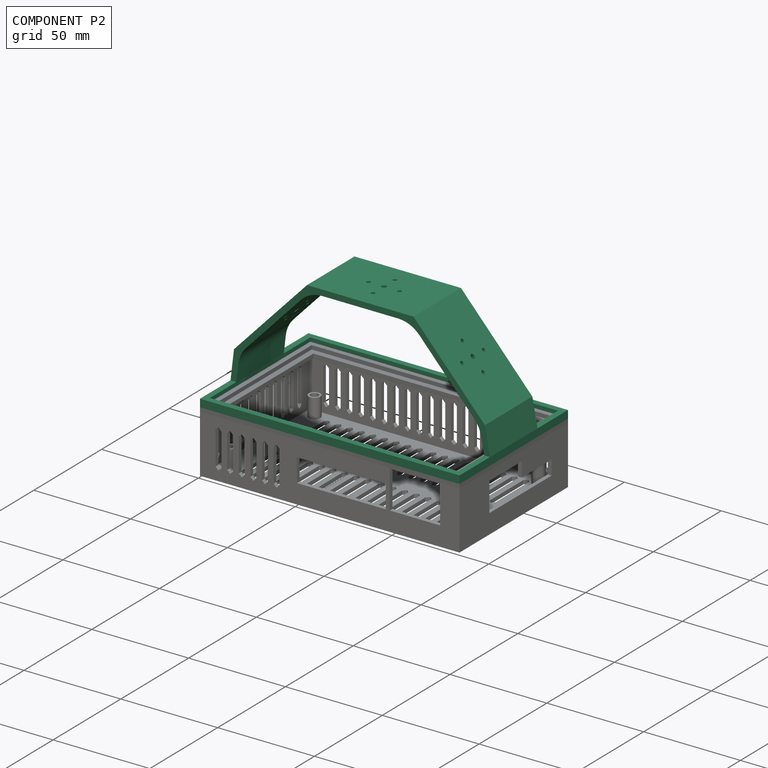
[diagram: component P2 — assembled]
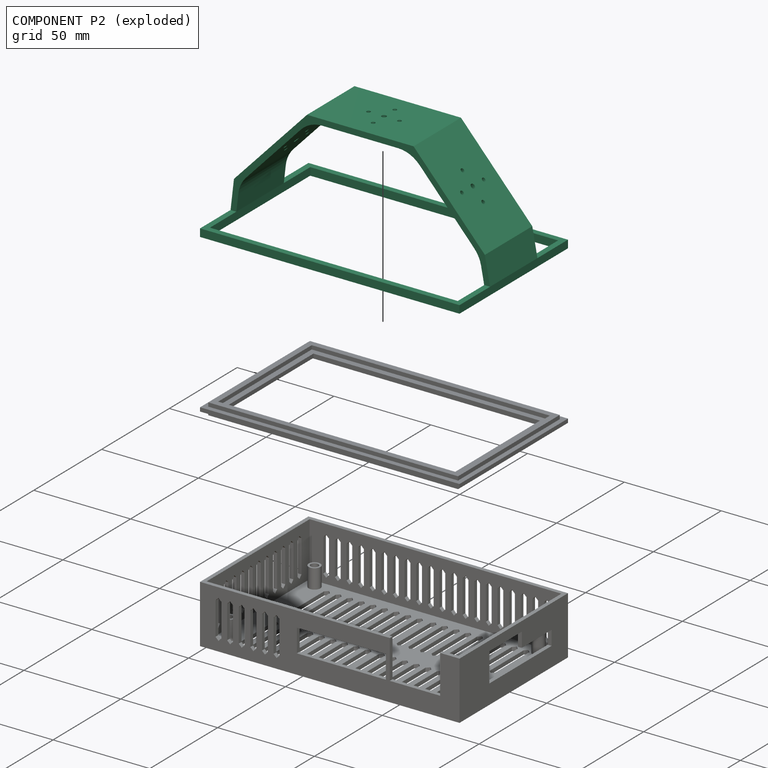
[diagram: component P2 — exploded]
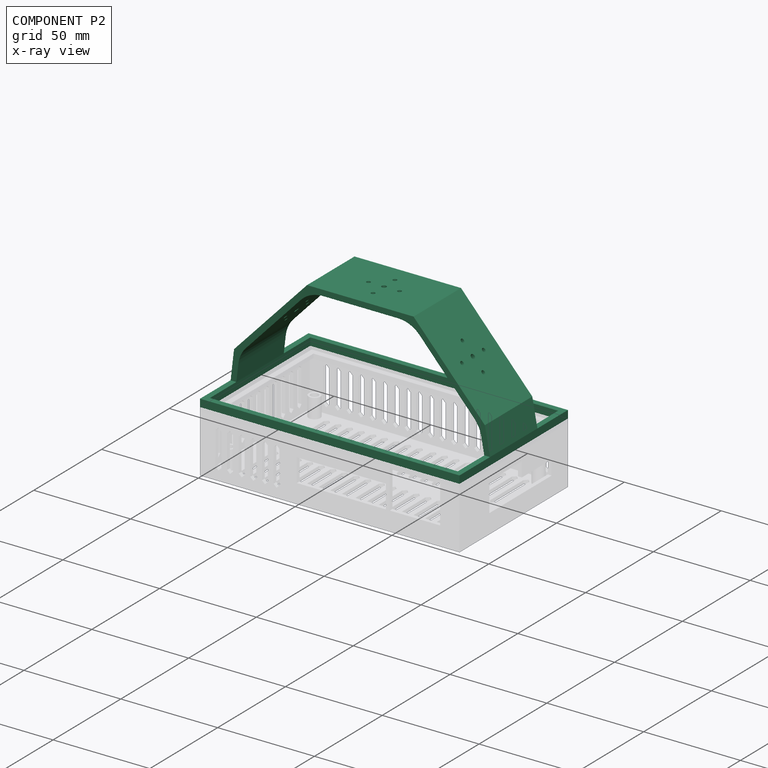
[diagram: component P2 — x-ray view]
COMPONENT P2 — recipe-attached (CADFS 00489796, mesh-verified: the recipe's output STEP matches this component's geometry to below the mesh-comparison resolution (tessellation chordal tolerance ~0.25 mm)).
Held by: PLANAR mate "Planar 4" to P1.
Construction recipe (FeatureScript — the CAD program that rebuilds this solid; sketch coordinates are in the units given by the * unit suffixes, e.g. mm):

FeatureScript 1511;
import(path : "onshape/std/geometry.fs", version : "1511.0");
import(path : "onshape/std/common.fs", version : "1511.0");
const mm = millimeter;
const VERTEX = EntityType.VERTEX;
const EDGE = EntityType.EDGE;
const FACE = EntityType.FACE;
const BODY = EntityType.BODY;
function v(x, y){return vector(x, y);}
function OD(order){return orderDisambiguation(order);}
function OSD(set){return originalSetDisambiguation(set);}
function TD(topology){return topologyDisambiguation(topology);}
function TDD(query){return trueDependencyDisambiguation(query);}
function sQuery(a, b, c) {return sketchEntityQuery(a, b, c);}

annotation { "Feature Type Name" : "Feature", "Feature Type Description" : "" }
export const myFeature = defineFeature(function(context is Context, id is Id, definition is map)
    precondition{}
    {
        {
            var Q0;
            Q0=qCreatedBy(makeId("Top.planeOp"),FACE);
            var sketch = newSketch(context, id + "F0", { "sketchPlane" : qUnion([Q0])});
            skLineSegment(sketch, "E0.bottom", {"start": v(-67, 40) * mm, "end": v(67, 40) * mm});
            skLineSegment(sketch, "E0.top", {"start": v(-67, -40) * mm, "end": v(67, -40) * mm});
            skLineSegment(sketch, "E0.left", {"start": v(-67, 40) * mm, "end": v(-67, -40) * mm});
            skLineSegment(sketch, "E0.right", {"start": v(67, 40) * mm, "end": v(67, -40) * mm});
            skSolve(sketch);
        }
        {
            var Q0;
            Q0=makeQuery(id+"F0.imprint","IMPRINT",FACE,{"disambiguationData":[TD([[makeQuery(id+"F0.imprint","IMPRINT",EDGE,{"derivedFrom":sQuery(id+"F0.wireOp",EDGE,"E0.bottom")}),-1.0]])]});
            extrude(context, id + "F1", {"entities" : qUnion([Q0]), "depth" : 4 * mm});
        }
        {
            var Q0;
            Q0=makeQuery(id+"F1.opExtrude","CAP_FACE",FACE,{"disambiguationData":[OSD([sQuery(id+"F0.wireOp",EDGE,"E0.bottom"),sQuery(id+"F0.wireOp",EDGE,"E0.top"),sQuery(id+"F0.wireOp",EDGE,"E0.left"),sQuery(id+"F0.wireOp",EDGE,"E0.right")])],"isStart":true});
            var sketch = newSketch(context, id + "F2", { "sketchPlane" : qUnion([Q0])});
            skLineSegment(sketch, "E1.bottom", {"start": v(-64, 37) * mm, "end": v(64, 37) * mm});
            skLineSegment(sketch, "E1.top", {"start": v(-64, -37) * mm, "end": v(64, -37) * mm});
            skLineSegment(sketch, "E1.left", {"start": v(-64, 37) * mm, "end": v(-64, -37) * mm});
            skLineSegment(sketch, "E1.right", {"start": v(64, 37) * mm, "end": v(64, -37) * mm});
            skLineSegment(sketch, "E2.bottom", {"start": v(-61, 34) * mm, "end": v(61, 34) * mm});
            skLineSegment(sketch, "E2.top", {"start": v(-61, -34) * mm, "end": v(61, -34) * mm});
            skLineSegment(sketch, "E2.left", {"start": v(-61, 34) * mm, "end": v(-61, -34) * mm});
            skLineSegment(sketch, "E2.right", {"start": v(61, 34) * mm, "end": v(61, -34) * mm});
            skSolve(sketch);
        }
        {
            var Q0;
            Q0=makeQuery(id+"F2.imprint","IMPRINT",FACE,{"disambiguationData":[TD([[makeQuery(id+"F2.imprint","IMPRINT",EDGE,{"derivedFrom":sQuery(id+"F2.wireOp",EDGE,"E1.bottom")}),-1.0]])]});
            var Q1;
            Q1=makeQuery(id+"F2.imprint","IMPRINT",FACE,{"disambiguationData":[TD([[makeQuery(id+"F2.imprint","IMPRINT",EDGE,{"derivedFrom":sQuery(id+"F2.wireOp",EDGE,"E2.bottom")}),-1.0]])]});
            extrude(context, id + "F3", {"entities" : qUnion([Q0, Q1]), "operationType" : NewBodyOperationType.REMOVE, "depth" : 2 * mm, "hasSecondDirection" : true, "secondDirectionOppositeDirection" : true, "secondDirectionDepth" : 4 * mm});
        }
        {
            var Q0;
            Q0=qCreatedBy(makeId("Front.planeOp"),FACE);
            var sketch = newSketch(context, id + "F4", { "sketchPlane" : qUnion([Q0])});
            skLineSegment(sketch, "E3", {"start": v(-65.24, 18.99) * mm, "end": v(-27.5, 59) * mm});
            skLineSegment(sketch, "E4", {"start": v(-27.5, 59) * mm, "end": v(27.5, 59) * mm});
            skLineSegment(sketch, "E5", {"start": v(27.5, 59) * mm, "end": v(64.35, 18.17) * mm});
            skLineSegment(sketch, "E6", {"start": v(-65.24, 18.99) * mm, "end": v(-67, 4) * mm});
            skLineSegment(sketch, "E7", {"start": v(64.35, 18.17) * mm, "end": v(67, 4) * mm});
            skLineSegment(sketch, "E8", {"start": v(67, 4) * mm, "end": v(64, 4) * mm});
            skLineSegment(sketch, "E9", {"start": v(64, 4) * mm, "end": v(61.62, 16.71) * mm});
            skLineSegment(sketch, "E10", {"start": v(61.62, 16.71) * mm, "end": v(26.17, 56) * mm});
            skLineSegment(sketch, "E11", {"start": v(26.17, 56) * mm, "end": v(-26.2, 56) * mm});
            skLineSegment(sketch, "E12", {"start": v(-26.2, 56) * mm, "end": v(-62.4, 17.63) * mm});
            skLineSegment(sketch, "E13", {"start": v(-62.4, 17.63) * mm, "end": v(-64, 4) * mm});
            skLineSegment(sketch, "E14", {"start": v(-64, 4) * mm, "end": v(-67, 4) * mm});
            skSolve(sketch);
        }
        {
            var Q0;
            Q0=qSketchRegion(id+"F4",true);
            extrude(context, id + "F5", {"entities" : qUnion([Q0]), "operationType" : NewBodyOperationType.ADD, "endBound" : BoundingType.SYMMETRIC, "depth" : 35 * mm});
        }
        {
            var Q0;
            Q0=makeQuery(id+"F5.opExtrude","SWEPT_FACE",FACE,{"disambiguationData":[OSD([sQuery(id+"F4.wireOp",EDGE,"E4")])]});
            var sketch = newSketch(context, id + "F6", { "sketchPlane" : qUnion([Q0])});
            skCircle(sketch, "E15", {"center": v(0, 0) * mm, "radius": 1.21 * mm});
            skCircle(sketch, "E16", {"center": v(-8, 0) * mm, "radius": 1 * mm});
            skCircle(sketch, "E17.1.0", {"center": v(0, -8) * mm, "radius": 1 * mm});
            skCircle(sketch, "E17.2.0", {"center": v(8, 0) * mm, "radius": 1 * mm});
            skCircle(sketch, "E17.3.0", {"center": v(0, 8) * mm, "radius": 1 * mm});
            skSolve(sketch);
        }
        {
            var Q0;
            Q0=makeQuery(id+"F5.opExtrude","SWEPT_FACE",FACE,{"disambiguationData":[OSD([sQuery(id+"F4.wireOp",EDGE,"E3")])]});
            var sketch = newSketch(context, id + "F7", { "sketchPlane" : qUnion([Q0])});
            skCircle(sketch, "E18", {"center": v(0, -4.9) * mm, "radius": 1.46 * mm});
            skCircle(sketch, "E19", {"center": v(-8, -4.8) * mm, "radius": 1 * mm});
            skCircle(sketch, "E20.1.0", {"center": v(-0.1, -12.9) * mm, "radius": 1 * mm});
            skCircle(sketch, "E20.2.0", {"center": v(8, -5) * mm, "radius": 1 * mm});
            skCircle(sketch, "E20.3.0", {"center": v(0.1, 3.1) * mm, "radius": 1 * mm});
            skSolve(sketch);
        }
        {
            var Q0;
            Q0=makeQuery(id+"F5.opExtrude","SWEPT_FACE",FACE,{"disambiguationData":[OSD([sQuery(id+"F4.wireOp",EDGE,"E5")])]});
            var sketch = newSketch(context, id + "F8", { "sketchPlane" : qUnion([Q0])});
            skCircle(sketch, "E21", {"center": v(0, -2.12) * mm, "radius": 1.21 * mm});
            skCircle(sketch, "E22", {"center": v(-8, -2.12) * mm, "radius": 1 * mm});
            skCircle(sketch, "E23.1.0", {"center": v(0, -10.12) * mm, "radius": 1 * mm});
            skCircle(sketch, "E23.2.0", {"center": v(8, -2.12) * mm, "radius": 1 * mm});
            skCircle(sketch, "E23.3.0", {"center": v(0, 5.88) * mm, "radius": 1 * mm});
            skSolve(sketch);
        }
        {
            var Q0;
            Q0=qSketchRegion(id+"F6",true);
            extrude(context, id + "F9", {"entities" : qUnion([Q0]), "operationType" : NewBodyOperationType.REMOVE, "oppositeDirection" : true, "depth" : 25 * mm});
        }
        {
            var Q0;
            Q0=qSketchRegion(id+"F7",true);
            extrude(context, id + "F10", {"entities" : qUnion([Q0]), "operationType" : NewBodyOperationType.REMOVE, "oppositeDirection" : true, "depth" : 25 * mm});
        }
        {
            var Q0;
            Q0=qSketchRegion(id+"F8",true);
            extrude(context, id + "F11", {"entities" : qUnion([Q0]), "operationType" : NewBodyOperationType.REMOVE, "oppositeDirection" : true, "depth" : 25 * mm});
        }
        {
            var Q0;
            Q0=makeQuery(id+"F5.opExtrude","SWEPT_EDGE",EDGE,{"disambiguationData":[OSD([sQuery(id+"F4.wireOp",EDGE,"E10"),sQuery(id+"F4.wireOp",EDGE,"E11")])]});
            var Q1;
            Q1=makeQuery(id+"F5.opExtrude","SWEPT_EDGE",EDGE,{"disambiguationData":[OSD([sQuery(id+"F4.wireOp",EDGE,"E11"),sQuery(id+"F4.wireOp",EDGE,"E12")])]});
            var Q2;
            Q2=makeQuery(id+"F5.opExtrude","SWEPT_EDGE",EDGE,{"disambiguationData":[OSD([sQuery(id+"F4.wireOp",EDGE,"E9"),sQuery(id+"F4.wireOp",EDGE,"E10")])]});
            var Q3;
            Q3=makeQuery(id+"F5.opExtrude","SWEPT_EDGE",EDGE,{"disambiguationData":[OSD([sQuery(id+"F4.wireOp",EDGE,"E12"),sQuery(id+"F4.wireOp",EDGE,"E13")])]});
            fillet(context, id + "F12", {"entities" : qUnion([Q0, Q1, Q2, Q3]), "radius" : 15 * mm, "tangentPropagation" : true, "allowEdgeOverflow" : false});
        }
    });
PROVENANCE & LICENSES
Assembly (occurrences, transforms, mates, per-part STEP geometry): AutoMate dataset, Zenodo record 7776208, CC0.
Construction recipes: CADFS (HuggingFace VladPyatov/CADFS, CC-BY-4.0, layered over the ABC dataset), FeatureScript reconstruction programs keyed by ABC model id.
Join: ABC meta listings map ABC model id -> Onshape documentId; within a shared document, parts are matched by geometric signature (bounding-box dims + volume at 0.1% relative tolerance, exact B-rep face/solid counts).
Verification: 3 of this assembly's 3 components carry a recipe attachment, and every attachment is mesh-verified: the CADFS STEP and the AutoMate member STEP were compared as meshes in their shared local frame (symmetric sampled-point-to-mesh distance); worst across the 3 attachments: below the mesh-comparison resolution (tessellation chordal tolerance ~0.25 mm) on a 167 mm part.
Renders: orthographic iso camera (az 35 / el 25); the floor grid conveys scale (grid pitch printed in each image; no ruler). In the exploded view each component is displaced by its stored offset vector: the offsets alone carry the explosion direction (mate normal/axis signs are not orientation cues and do not encode it), and separation distances are assigned per mate-chain, not proportionally to assembly-order depth.
